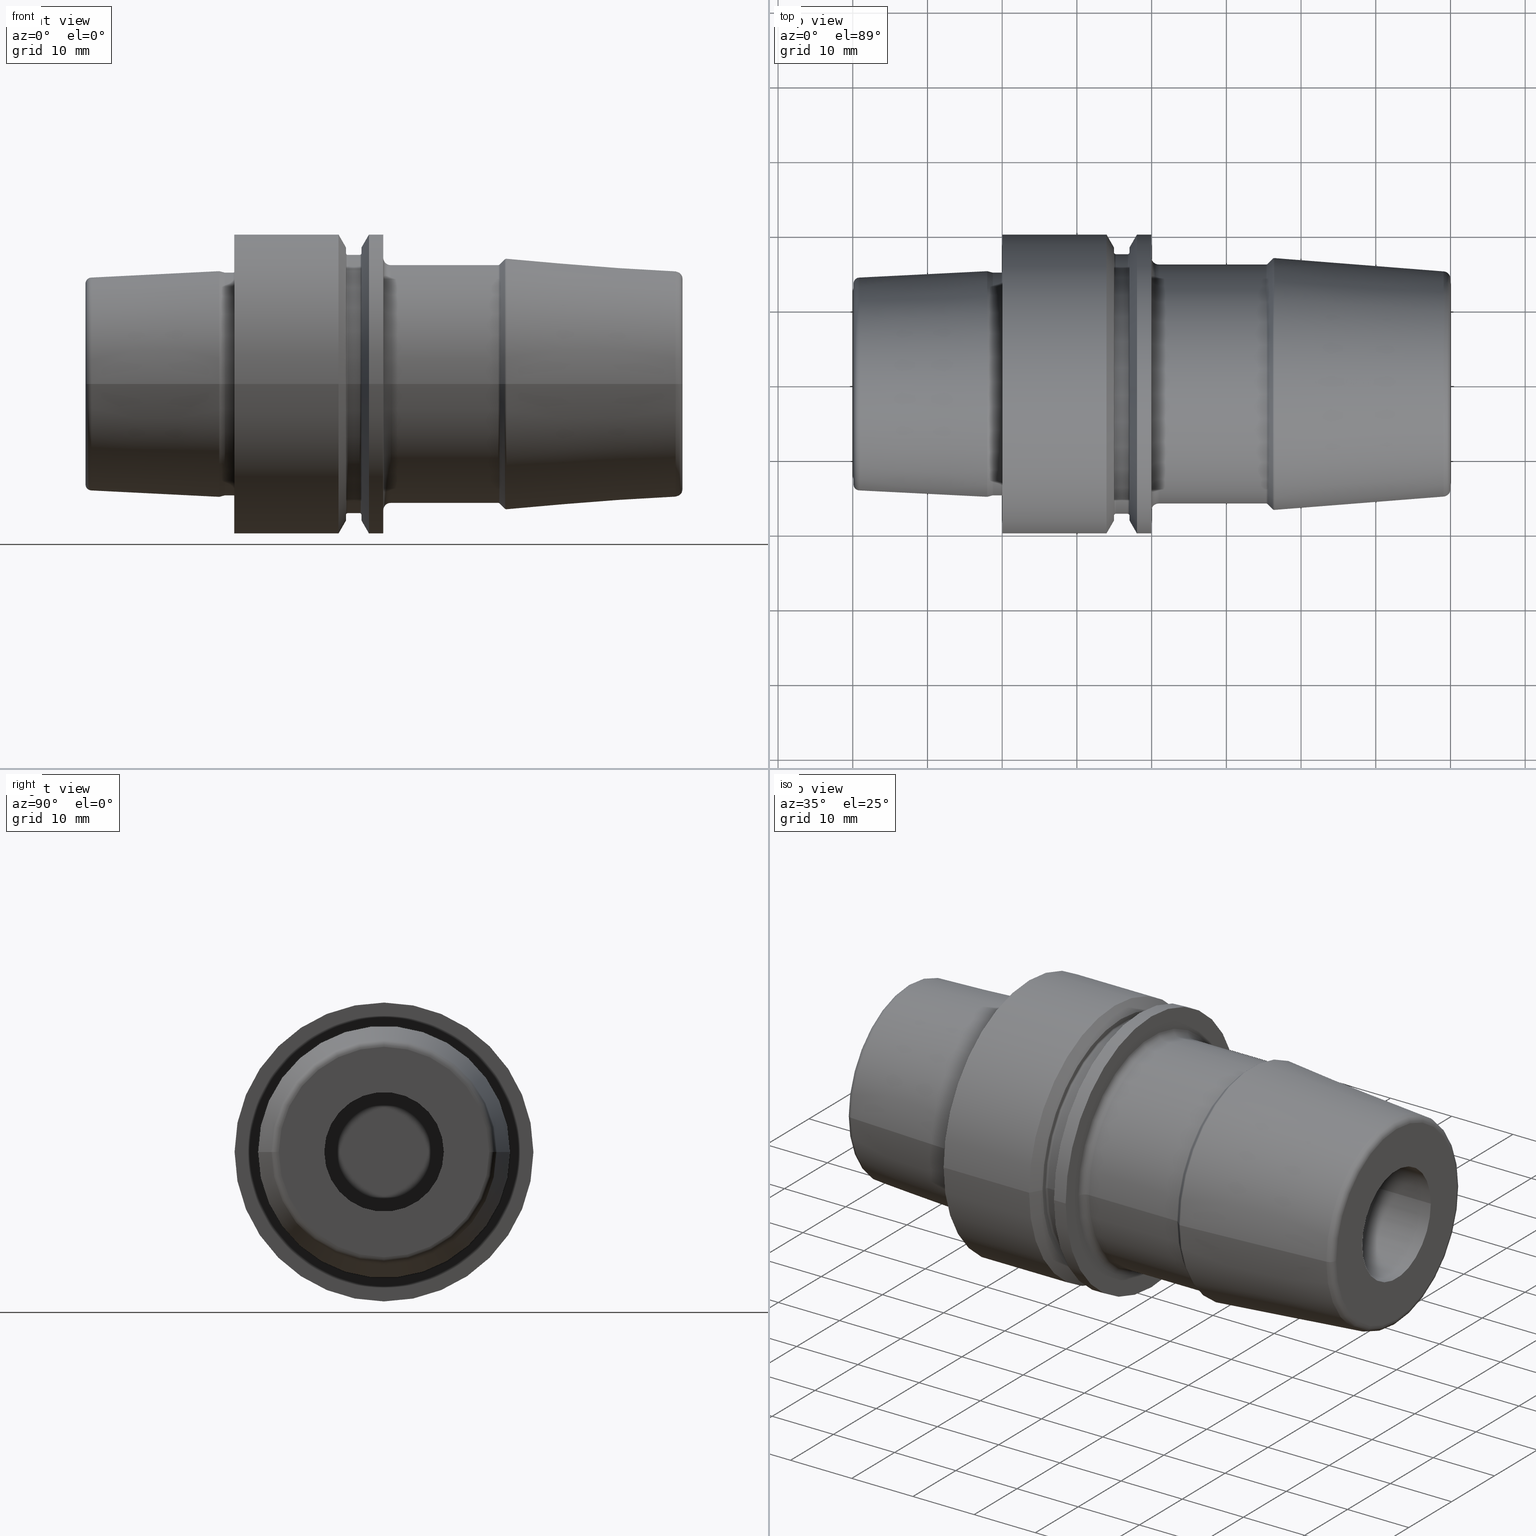
[diagram: canonical four-view strip — front | top / right | iso, engineering-drawing reading convention]
A machine part, canonical four-view strip (front | top / right | iso — engineering-drawing reading convention). The complete STEP part file that produces these views, byte-faithful:
ISO-10303-21;
HEADER;
FILE_DESCRIPTION((''),'2;1');
FILE_NAME('E40-145-16','2013-01-11T',('mei'),(''),
'PRO/ENGINEER BY PARAMETRIC TECHNOLOGY CORPORATION, 2010430',
'PRO/ENGINEER BY PARAMETRIC TECHNOLOGY CORPORATION, 2010430','');
FILE_SCHEMA(('CONFIG_CONTROL_DESIGN'));
ENDSEC;
DATA;
#2=CARTESIAN_POINT('',(-2.E0,0.E0,0.E0));
#3=DIRECTION('',(1.E0,0.E0,0.E0));
#4=DIRECTION('',(0.E0,1.E0,0.E0));
#5=AXIS2_PLACEMENT_3D('',#2,#3,#4);
#7=CARTESIAN_POINT('',(-1.304456457492E0,0.E0,0.E0));
#8=DIRECTION('',(-1.E0,0.E0,0.E0));
#9=DIRECTION('',(0.E0,-1.E0,0.E0));
#10=AXIS2_PLACEMENT_3D('',#7,#8,#9);
#12=DIRECTION('',(-9.659258262891E-1,-2.588190451025E-1,0.E0));
#13=VECTOR('',#12,7.200796619963E-1);
#14=CARTESIAN_POINT('',(-1.304456457492E0,-1.491732966948E1,0.E0));
#15=LINE('',#14,#13);
#16=CARTESIAN_POINT('',(-1.304456457492E0,0.E0,0.E0));
#17=DIRECTION('',(-1.E0,0.E0,0.E0));
#18=DIRECTION('',(0.E0,1.E0,0.E0));
#19=AXIS2_PLACEMENT_3D('',#16,#17,#18);
#21=DIRECTION('',(-9.659258262891E-1,2.588190451025E-1,0.E0));
#22=VECTOR('',#21,7.200796619963E-1);
#23=CARTESIAN_POINT('',(-1.304456457492E0,1.491732966948E1,0.E0));
#24=LINE('',#23,#22);
#25=CARTESIAN_POINT('',(-2.E0,0.E0,0.E0));
#26=DIRECTION('',(1.E0,0.E0,0.E0));
#27=DIRECTION('',(0.E0,-1.E0,0.E0));
#28=AXIS2_PLACEMENT_3D('',#25,#26,#27);
#30=DIRECTION('',(-9.987473526255E-1,-5.003724236654E-2,0.E0));
#31=VECTOR('',#30,1.716152713580E1);
#32=CARTESIAN_POINT('',(-2.E0,1.51037E1,0.E0));
#33=LINE('',#32,#31);
#34=DIRECTION('',(-9.987473526255E-1,5.003724236654E-2,0.E0));
#35=VECTOR('',#34,1.716152713580E1);
#36=CARTESIAN_POINT('',(-2.E0,-1.51037E1,0.E0));
#37=LINE('',#36,#35);
#38=CARTESIAN_POINT('',(-1.91E1,1.344598662523E1,0.E0));
#39=DIRECTION('',(0.E0,0.E0,1.E0));
#40=DIRECTION('',(-5.003724236654E-2,9.987473526255E-1,0.E0));
#41=AXIS2_PLACEMENT_3D('',#38,#39,#40);
#43=CARTESIAN_POINT('',(-1.91E1,-1.344598662523E1,0.E0));
#44=DIRECTION('',(0.E0,0.E0,-1.E0));
#45=DIRECTION('',(-5.003724236654E-2,-9.987473526255E-1,0.E0));
#46=AXIS2_PLACEMENT_3D('',#43,#44,#45);
#48=CARTESIAN_POINT('',(-1.914002979389E1,0.E0,0.E0));
#49=DIRECTION('',(-1.E0,0.E0,0.E0));
#50=DIRECTION('',(0.E0,1.E0,0.E0));
#51=AXIS2_PLACEMENT_3D('',#48,#49,#50);
#53=CARTESIAN_POINT('',(-1.914002979389E1,0.E0,0.E0));
#54=DIRECTION('',(1.E0,0.E0,0.E0));
#55=DIRECTION('',(0.E0,1.E0,0.E0));
#56=AXIS2_PLACEMENT_3D('',#53,#54,#55);
#58=CARTESIAN_POINT('',(-1.99E1,0.E0,0.E0));
#59=DIRECTION('',(-1.E0,0.E0,0.E0));
#60=DIRECTION('',(0.E0,1.E0,0.E0));
#61=AXIS2_PLACEMENT_3D('',#58,#59,#60);
#63=CARTESIAN_POINT('',(-1.99E1,0.E0,0.E0));
#64=DIRECTION('',(1.E0,0.E0,0.E0));
#65=DIRECTION('',(0.E0,1.E0,0.E0));
#66=AXIS2_PLACEMENT_3D('',#63,#64,#65);
#68=CARTESIAN_POINT('',(-1.99E1,0.E0,0.E0));
#69=DIRECTION('',(1.E0,0.E0,0.E0));
#70=DIRECTION('',(0.E0,1.E0,0.E0));
#71=AXIS2_PLACEMENT_3D('',#68,#69,#70);
#73=CARTESIAN_POINT('',(-1.99E1,0.E0,0.E0));
#74=DIRECTION('',(1.E0,0.E0,0.E0));
#75=DIRECTION('',(0.E0,-1.E0,0.E0));
#76=AXIS2_PLACEMENT_3D('',#73,#74,#75);
#78=CARTESIAN_POINT('',(-1.895E1,0.E0,0.E0));
#79=DIRECTION('',(1.E0,0.E0,0.E0));
#80=DIRECTION('',(0.E0,1.E0,0.E0));
#81=AXIS2_PLACEMENT_3D('',#78,#79,#80);
#83=DIRECTION('',(-8.660254037844E-1,5.E-1,0.E0));
#84=VECTOR('',#83,1.096965511460E0);
#85=CARTESIAN_POINT('',(-1.895E1,1.0521E1,0.E0));
#86=LINE('',#85,#84);
#87=CARTESIAN_POINT('',(-1.895E1,0.E0,0.E0));
#88=DIRECTION('',(-1.E0,0.E0,0.E0));
#89=DIRECTION('',(0.E0,1.E0,0.E0));
#90=AXIS2_PLACEMENT_3D('',#87,#88,#89);
#92=DIRECTION('',(-8.660254037844E-1,-5.E-1,0.E0));
#93=VECTOR('',#92,1.096965511460E0);
#94=CARTESIAN_POINT('',(-1.895E1,-1.0521E1,0.E0));
#95=LINE('',#94,#93);
#96=DIRECTION('',(-1.E0,0.E0,0.E0));
#97=VECTOR('',#96,6.964774086463E0);
#98=CARTESIAN_POINT('',(-1.198522591354E1,1.0521E1,0.E0));
#99=LINE('',#98,#97);
#100=CARTESIAN_POINT('',(-1.198522591354E1,0.E0,0.E0));
#101=DIRECTION('',(-1.E0,0.E0,0.E0));
#102=DIRECTION('',(0.E0,1.E0,0.E0));
#103=AXIS2_PLACEMENT_3D('',#100,#101,#102);
#105=DIRECTION('',(-1.E0,0.E0,0.E0));
#106=VECTOR('',#105,6.964774086463E0);
#107=CARTESIAN_POINT('',(-1.198522591354E1,-1.0521E1,0.E0));
#108=LINE('',#107,#106);
#109=CARTESIAN_POINT('',(-1.198522591354E1,0.E0,0.E0));
#110=DIRECTION('',(1.E0,0.E0,0.E0));
#111=DIRECTION('',(0.E0,1.E0,0.E0));
#112=AXIS2_PLACEMENT_3D('',#109,#110,#111);
#114=CARTESIAN_POINT('',(-1.079501833360E1,0.E0,0.E0));
#115=DIRECTION('',(1.E0,0.E0,0.E0));
#116=DIRECTION('',(0.E0,1.E0,0.E0));
#117=AXIS2_PLACEMENT_3D('',#114,#115,#116);
#119=DIRECTION('',(-5.E-1,-8.660254037844E-1,0.E0));
#120=VECTOR('',#119,2.380415159869E0);
#121=CARTESIAN_POINT('',(-1.079501833360E1,1.25825E1,0.E0));
#122=LINE('',#121,#120);
#123=CARTESIAN_POINT('',(-1.079501833360E1,0.E0,0.E0));
#124=DIRECTION('',(-1.E0,0.E0,0.E0));
#125=DIRECTION('',(0.E0,1.E0,0.E0));
#126=AXIS2_PLACEMENT_3D('',#123,#124,#125);
#128=DIRECTION('',(-5.E-1,8.660254037844E-1,0.E0));
#129=VECTOR('',#128,2.380415159869E0);
#130=CARTESIAN_POINT('',(-1.079501833360E1,-1.25825E1,0.E0));
#131=LINE('',#130,#129);
#132=CARTESIAN_POINT('',(-1.044860817209E1,1.23825E1,0.E0));
#133=DIRECTION('',(0.E0,0.E0,1.E0));
#134=DIRECTION('',(0.E0,1.E0,0.E0));
#135=AXIS2_PLACEMENT_3D('',#132,#133,#134);
#137=CARTESIAN_POINT('',(-1.044860817209E1,0.E0,0.E0));
#138=DIRECTION('',(-1.E0,0.E0,0.E0));
#139=DIRECTION('',(0.E0,1.E0,0.E0));
#140=AXIS2_PLACEMENT_3D('',#137,#138,#139);
#142=CARTESIAN_POINT('',(-1.044860817209E1,-1.23825E1,0.E0));
#143=DIRECTION('',(0.E0,0.E0,-1.E0));
#144=DIRECTION('',(0.E0,-1.E0,0.E0));
#145=AXIS2_PLACEMENT_3D('',#142,#143,#144);
#147=CARTESIAN_POINT('',(-1.044860817209E1,0.E0,0.E0));
#148=DIRECTION('',(1.E0,0.E0,0.E0));
#149=DIRECTION('',(0.E0,1.E0,0.E0));
#150=AXIS2_PLACEMENT_3D('',#147,#148,#149);
#152=CARTESIAN_POINT('',(-4.183373967266E0,0.E0,0.E0));
#153=DIRECTION('',(1.E0,0.E0,0.E0));
#154=DIRECTION('',(0.E0,1.E0,0.E0));
#155=AXIS2_PLACEMENT_3D('',#152,#153,#154);
#157=DIRECTION('',(-1.E0,0.E0,0.E0));
#158=VECTOR('',#157,6.265234204822E0);
#159=CARTESIAN_POINT('',(-4.183373967266E0,1.27825E1,0.E0));
#160=LINE('',#159,#158);
#161=CARTESIAN_POINT('',(-4.183373967266E0,0.E0,0.E0));
#162=DIRECTION('',(-1.E0,0.E0,0.E0));
#163=DIRECTION('',(0.E0,1.E0,0.E0));
#164=AXIS2_PLACEMENT_3D('',#161,#162,#163);
#166=DIRECTION('',(-1.E0,0.E0,0.E0));
#167=VECTOR('',#166,6.265234204822E0);
#168=CARTESIAN_POINT('',(-4.183373967266E0,-1.27825E1,0.E0));
#169=LINE('',#168,#167);
#170=CARTESIAN_POINT('',(-4.183373967266E0,7.7825E0,0.E0));
#171=DIRECTION('',(0.E0,0.E0,1.E0));
#172=DIRECTION('',(8.366747934532E-1,5.477E-1,0.E0));
#173=AXIS2_PLACEMENT_3D('',#170,#171,#172);
#175=CARTESIAN_POINT('',(0.E0,0.E0,0.E0));
#176=DIRECTION('',(-1.E0,0.E0,0.E0));
#177=DIRECTION('',(0.E0,1.E0,0.E0));
#178=AXIS2_PLACEMENT_3D('',#175,#176,#177);
#180=CARTESIAN_POINT('',(-4.183373967266E0,-7.7825E0,0.E0));
#181=DIRECTION('',(0.E0,0.E0,-1.E0));
#182=DIRECTION('',(8.366747934532E-1,-5.477E-1,0.E0));
#183=AXIS2_PLACEMENT_3D('',#180,#181,#182);
#185=CARTESIAN_POINT('',(0.E0,0.E0,0.E0));
#186=DIRECTION('',(1.E0,0.E0,0.E0));
#187=DIRECTION('',(0.E0,1.E0,0.E0));
#188=AXIS2_PLACEMENT_3D('',#185,#186,#187);
#190=CARTESIAN_POINT('',(6.186662590986E0,0.E0,0.E0));
#191=DIRECTION('',(1.E0,0.E0,0.E0));
#192=DIRECTION('',(0.E0,1.E0,0.E0));
#193=AXIS2_PLACEMENT_3D('',#190,#191,#192);
#195=DIRECTION('',(-1.E0,0.E0,0.E0));
#196=VECTOR('',#195,6.186662590986E0);
#197=CARTESIAN_POINT('',(6.186662590986E0,1.0521E1,0.E0));
#198=LINE('',#197,#196);
#199=CARTESIAN_POINT('',(6.186662590986E0,0.E0,0.E0));
#200=DIRECTION('',(-1.E0,0.E0,0.E0));
#201=DIRECTION('',(0.E0,1.E0,0.E0));
#202=AXIS2_PLACEMENT_3D('',#199,#200,#201);
#204=DIRECTION('',(-1.E0,0.E0,0.E0));
#205=VECTOR('',#204,6.186662590986E0);
#206=CARTESIAN_POINT('',(6.186662590986E0,-1.0521E1,0.E0));
#207=LINE('',#206,#205);
#208=CARTESIAN_POINT('',(6.95E0,9.875E0,0.E0));
#209=DIRECTION('',(0.E0,0.E0,1.E0));
#210=DIRECTION('',(1.E0,0.E0,0.E0));
#211=AXIS2_PLACEMENT_3D('',#208,#209,#210);
#213=CARTESIAN_POINT('',(7.95E0,0.E0,0.E0));
#214=DIRECTION('',(-1.E0,0.E0,0.E0));
#215=DIRECTION('',(0.E0,1.E0,0.E0));
#216=AXIS2_PLACEMENT_3D('',#213,#214,#215);
#218=CARTESIAN_POINT('',(6.95E0,-9.875E0,0.E0));
#219=DIRECTION('',(0.E0,0.E0,-1.E0));
#220=DIRECTION('',(1.E0,0.E0,0.E0));
#221=AXIS2_PLACEMENT_3D('',#218,#219,#220);
#223=CARTESIAN_POINT('',(7.95E0,0.E0,0.E0));
#224=DIRECTION('',(1.E0,0.E0,0.E0));
#225=DIRECTION('',(0.E0,1.E0,0.E0));
#226=AXIS2_PLACEMENT_3D('',#223,#224,#225);
#228=CARTESIAN_POINT('',(-1.200928839451E0,1.53037E1,0.E0));
#229=DIRECTION('',(0.E0,0.E0,-1.E0));
#230=DIRECTION('',(0.E0,-1.E0,0.E0));
#231=AXIS2_PLACEMENT_3D('',#228,#229,#230);
#233=CARTESIAN_POINT('',(-1.200928839451E0,-1.53037E1,0.E0));
#234=DIRECTION('',(0.E0,0.E0,1.E0));
#235=DIRECTION('',(0.E0,1.E0,0.E0));
#236=AXIS2_PLACEMENT_3D('',#233,#234,#235);
#238=CARTESIAN_POINT('',(-1.200928839451E0,0.E0,0.E0));
#239=DIRECTION('',(-1.E0,0.E0,0.E0));
#240=DIRECTION('',(0.E0,1.E0,0.E0));
#241=AXIS2_PLACEMENT_3D('',#238,#239,#240);
#243=CARTESIAN_POINT('',(-1.200928839451E0,0.E0,0.E0));
#244=DIRECTION('',(-1.E0,0.E0,0.E0));
#245=DIRECTION('',(0.E0,-1.E0,0.E0));
#246=AXIS2_PLACEMENT_3D('',#243,#244,#245);
#248=CARTESIAN_POINT('',(-1.541771632753E-1,0.E0,0.E0));
#249=DIRECTION('',(-1.E0,0.E0,0.E0));
#250=DIRECTION('',(0.E0,-1.E0,0.E0));
#251=AXIS2_PLACEMENT_3D('',#248,#249,#250);
#253=DIRECTION('',(-1.E0,0.E0,0.E0));
#254=VECTOR('',#253,1.046751676176E0);
#255=CARTESIAN_POINT('',(-1.541771632753E-1,1.49037E1,0.E0));
#256=LINE('',#255,#254);
#257=DIRECTION('',(-1.E0,0.E0,0.E0));
#258=VECTOR('',#257,1.046751676176E0);
#259=CARTESIAN_POINT('',(-1.541771632753E-1,-1.49037E1,0.E0));
#260=LINE('',#259,#258);
#261=CARTESIAN_POINT('',(-1.541771632753E-1,0.E0,0.E0));
#262=DIRECTION('',(-1.E0,0.E0,0.E0));
#263=DIRECTION('',(0.E0,1.E0,0.E0));
#264=AXIS2_PLACEMENT_3D('',#261,#262,#263);
#266=CARTESIAN_POINT('',(-1.541771632753E-1,1.53037E1,0.E0));
#267=DIRECTION('',(0.E0,0.E0,-1.E0));
#268=DIRECTION('',(9.304175679820E-1,3.665012267243E-1,0.E0));
#269=AXIS2_PLACEMENT_3D('',#266,#267,#268);
#271=CARTESIAN_POINT('',(-1.541771632753E-1,-1.53037E1,0.E0));
#272=DIRECTION('',(0.E0,0.E0,1.E0));
#273=DIRECTION('',(9.304175679820E-1,-3.665012267243E-1,0.E0));
#274=AXIS2_PLACEMENT_3D('',#271,#272,#273);
#276=CARTESIAN_POINT('',(2.179898639175E-1,0.E0,0.E0));
#277=DIRECTION('',(-1.E0,0.E0,0.E0));
#278=DIRECTION('',(0.E0,1.E0,0.E0));
#279=AXIS2_PLACEMENT_3D('',#276,#277,#278);
#281=CARTESIAN_POINT('',(2.179898639175E-1,0.E0,0.E0));
#282=DIRECTION('',(-1.E0,0.E0,0.E0));
#283=DIRECTION('',(0.E0,-1.E0,0.E0));
#284=AXIS2_PLACEMENT_3D('',#281,#282,#283);
#286=DIRECTION('',(3.665012267243E-1,9.304175679820E-1,0.E0));
#287=VECTOR('',#286,5.947861781141E-1);
#288=CARTESIAN_POINT('',(0.E0,-1.60037E1,0.E0));
#289=LINE('',#288,#287);
#290=DIRECTION('',(3.665012267243E-1,-9.304175679820E-1,0.E0));
#291=VECTOR('',#290,5.947861781141E-1);
#292=CARTESIAN_POINT('',(0.E0,1.60037E1,0.E0));
#293=LINE('',#292,#291);
#294=CARTESIAN_POINT('',(-1.065814103640E-14,0.E0,0.E0));
#295=DIRECTION('',(1.E0,0.E0,0.E0));
#296=DIRECTION('',(0.E0,1.E0,0.E0));
#297=AXIS2_PLACEMENT_3D('',#294,#295,#296);
#299=CARTESIAN_POINT('',(-1.065814103640E-14,0.E0,0.E0));
#300=DIRECTION('',(-1.E0,0.E0,0.E0));
#301=DIRECTION('',(0.E0,1.E0,0.E0));
#302=AXIS2_PLACEMENT_3D('',#299,#300,#301);
#304=CARTESIAN_POINT('',(0.E0,0.E0,0.E0));
#305=DIRECTION('',(-1.E0,0.E0,0.E0));
#306=DIRECTION('',(0.E0,-1.E0,0.E0));
#307=AXIS2_PLACEMENT_3D('',#304,#305,#306);
#309=CARTESIAN_POINT('',(0.E0,0.E0,0.E0));
#310=DIRECTION('',(-1.E0,0.E0,0.E0));
#311=DIRECTION('',(0.E0,1.E0,0.E0));
#312=AXIS2_PLACEMENT_3D('',#309,#310,#311);
#314=CARTESIAN_POINT('',(1.803515969889E1,0.E0,0.E0));
#315=DIRECTION('',(1.E0,0.E0,0.E0));
#316=DIRECTION('',(0.E0,1.E0,0.E0));
#317=AXIS2_PLACEMENT_3D('',#314,#315,#316);
#319=CARTESIAN_POINT('',(1.995E1,0.E0,0.E0));
#320=DIRECTION('',(1.E0,0.E0,0.E0));
#321=DIRECTION('',(0.E0,1.E0,0.E0));
#322=AXIS2_PLACEMENT_3D('',#319,#320,#321);
#324=CARTESIAN_POINT('',(1.396484030111E1,0.E0,0.E0));
#325=DIRECTION('',(1.E0,0.E0,0.E0));
#326=DIRECTION('',(0.E0,1.E0,0.E0));
#327=AXIS2_PLACEMENT_3D('',#324,#325,#326);
#329=CARTESIAN_POINT('',(1.70375E1,0.E0,0.E0));
#330=DIRECTION('',(1.E0,0.E0,0.E0));
#331=DIRECTION('',(0.E0,1.E0,0.E0));
#332=AXIS2_PLACEMENT_3D('',#329,#330,#331);
#334=DIRECTION('',(5.E-1,8.660254037844E-1,0.E0));
#335=VECTOR('',#334,1.995319397787E0);
#336=CARTESIAN_POINT('',(1.70375E1,1.827200271285E1,0.E0));
#337=LINE('',#336,#335);
#338=CARTESIAN_POINT('',(1.70375E1,0.E0,0.E0));
#339=DIRECTION('',(-1.E0,0.E0,0.E0));
#340=DIRECTION('',(0.E0,1.E0,0.E0));
#341=AXIS2_PLACEMENT_3D('',#338,#339,#340);
#343=DIRECTION('',(5.E-1,-8.660254037844E-1,0.E0));
#344=VECTOR('',#343,1.995319397787E0);
#345=CARTESIAN_POINT('',(1.70375E1,-1.827200271285E1,0.E0));
#346=LINE('',#345,#344);
#347=CARTESIAN_POINT('',(1.70375E1,0.E0,0.E0));
#348=DIRECTION('',(-1.E0,0.E0,0.E0));
#349=DIRECTION('',(0.E0,1.E0,0.E0));
#350=AXIS2_PLACEMENT_3D('',#347,#348,#349);
#352=CARTESIAN_POINT('',(1.70375E1,0.E0,0.E0));
#353=DIRECTION('',(1.E0,0.E0,0.E0));
#354=DIRECTION('',(0.E0,1.E0,0.E0));
#355=AXIS2_PLACEMENT_3D('',#352,#353,#354);
#357=CARTESIAN_POINT('',(1.67875E1,1.7625E1,0.E0));
#358=DIRECTION('',(0.E0,0.E0,1.E0));
#359=DIRECTION('',(0.E0,-1.E0,0.E0));
#360=AXIS2_PLACEMENT_3D('',#357,#358,#359);
#362=CARTESIAN_POINT('',(1.67875E1,0.E0,0.E0));
#363=DIRECTION('',(-1.E0,0.E0,0.E0));
#364=DIRECTION('',(0.E0,1.E0,0.E0));
#365=AXIS2_PLACEMENT_3D('',#362,#363,#364);
#367=CARTESIAN_POINT('',(1.67875E1,-1.7625E1,0.E0));
#368=DIRECTION('',(0.E0,0.E0,-1.E0));
#369=DIRECTION('',(0.E0,1.E0,0.E0));
#370=AXIS2_PLACEMENT_3D('',#367,#368,#369);
#372=CARTESIAN_POINT('',(1.67875E1,0.E0,0.E0));
#373=DIRECTION('',(1.E0,0.E0,0.E0));
#374=DIRECTION('',(0.E0,1.E0,0.E0));
#375=AXIS2_PLACEMENT_3D('',#372,#373,#374);
#377=CARTESIAN_POINT('',(1.52125E1,0.E0,0.E0));
#378=DIRECTION('',(1.E0,0.E0,0.E0));
#379=DIRECTION('',(0.E0,1.E0,0.E0));
#380=AXIS2_PLACEMENT_3D('',#377,#378,#379);
#382=DIRECTION('',(1.E0,0.E0,0.E0));
#383=VECTOR('',#382,1.575E0);
#384=CARTESIAN_POINT('',(1.52125E1,-1.7375E1,0.E0));
#385=LINE('',#384,#383);
#386=DIRECTION('',(-1.E0,0.E0,0.E0));
#387=VECTOR('',#386,1.575E0);
#388=CARTESIAN_POINT('',(1.67875E1,1.7375E1,0.E0));
#389=LINE('',#388,#387);
#390=CARTESIAN_POINT('',(1.52125E1,0.E0,0.E0));
#391=DIRECTION('',(-1.E0,0.E0,0.E0));
#392=DIRECTION('',(0.E0,1.E0,0.E0));
#393=AXIS2_PLACEMENT_3D('',#390,#391,#392);
#395=CARTESIAN_POINT('',(1.52125E1,1.7625E1,0.E0));
#396=DIRECTION('',(0.E0,0.E0,1.E0));
#397=DIRECTION('',(-1.E0,0.E0,0.E0));
#398=AXIS2_PLACEMENT_3D('',#395,#396,#397);
#400=CARTESIAN_POINT('',(1.49625E1,0.E0,0.E0));
#401=DIRECTION('',(-1.E0,0.E0,0.E0));
#402=DIRECTION('',(0.E0,1.E0,0.E0));
#403=AXIS2_PLACEMENT_3D('',#400,#401,#402);
#405=CARTESIAN_POINT('',(1.52125E1,-1.7625E1,0.E0));
#406=DIRECTION('',(0.E0,0.E0,-1.E0));
#407=DIRECTION('',(-1.E0,0.E0,0.E0));
#408=AXIS2_PLACEMENT_3D('',#405,#406,#407);
#410=CARTESIAN_POINT('',(1.49625E1,0.E0,0.E0));
#411=DIRECTION('',(1.E0,0.E0,0.E0));
#412=DIRECTION('',(0.E0,1.E0,0.E0));
#413=AXIS2_PLACEMENT_3D('',#410,#411,#412);
#415=CARTESIAN_POINT('',(1.49625E1,0.E0,0.E0));
#416=DIRECTION('',(-1.E0,0.E0,0.E0));
#417=DIRECTION('',(0.E0,1.E0,0.E0));
#418=AXIS2_PLACEMENT_3D('',#415,#416,#417);
#420=CARTESIAN_POINT('',(1.49625E1,0.E0,0.E0));
#421=DIRECTION('',(1.E0,0.E0,0.E0));
#422=DIRECTION('',(0.E0,1.E0,0.E0));
#423=AXIS2_PLACEMENT_3D('',#420,#421,#422);
#425=DIRECTION('',(5.E-1,-8.660254037844E-1,0.E0));
#426=VECTOR('',#425,1.995319397787E0);
#427=CARTESIAN_POINT('',(1.396484030111E1,2.E1,0.E0));
#428=LINE('',#427,#426);
#429=DIRECTION('',(5.E-1,8.660254037844E-1,0.E0));
#430=VECTOR('',#429,1.995319397787E0);
#431=CARTESIAN_POINT('',(1.396484030111E1,-2.E1,0.E0));
#432=LINE('',#431,#430);
#433=CARTESIAN_POINT('',(1.803515969889E1,0.E0,0.E0));
#434=DIRECTION('',(1.E0,0.E0,0.E0));
#435=DIRECTION('',(0.E0,-1.E0,0.E0));
#436=AXIS2_PLACEMENT_3D('',#433,#434,#435);
#438=DIRECTION('',(-1.E0,0.E0,0.E0));
#439=VECTOR('',#438,1.914840301107E0);
#440=CARTESIAN_POINT('',(1.995E1,-2.E1,0.E0));
#441=LINE('',#440,#439);
#442=CARTESIAN_POINT('',(1.995E1,0.E0,0.E0));
#443=DIRECTION('',(-1.E0,0.E0,0.E0));
#444=DIRECTION('',(0.E0,1.E0,0.E0));
#445=AXIS2_PLACEMENT_3D('',#442,#443,#444);
#447=DIRECTION('',(-1.E0,0.E0,0.E0));
#448=VECTOR('',#447,1.914840301107E0);
#449=CARTESIAN_POINT('',(1.995E1,2.E1,0.E0));
#450=LINE('',#449,#448);
#451=CARTESIAN_POINT('',(1.396484030111E1,0.E0,0.E0));
#452=DIRECTION('',(1.E0,0.E0,0.E0));
#453=DIRECTION('',(0.E0,-1.E0,0.E0));
#454=AXIS2_PLACEMENT_3D('',#451,#452,#453);
#456=DIRECTION('',(-1.E0,0.E0,0.E0));
#457=VECTOR('',#456,1.396484030111E1);
#458=CARTESIAN_POINT('',(1.396484030111E1,2.E1,0.E0));
#459=LINE('',#458,#457);
#460=DIRECTION('',(-1.E0,0.E0,0.E0));
#461=VECTOR('',#460,1.396484030111E1);
#462=CARTESIAN_POINT('',(1.396484030111E1,-2.E1,0.E0));
#463=LINE('',#462,#461);
#464=CARTESIAN_POINT('',(1.995E1,0.E0,0.E0));
#465=DIRECTION('',(1.E0,0.E0,0.E0));
#466=DIRECTION('',(0.E0,-1.E0,0.E0));
#467=AXIS2_PLACEMENT_3D('',#464,#465,#466);
#469=CARTESIAN_POINT('',(1.995E1,0.E0,0.E0));
#470=DIRECTION('',(1.E0,0.E0,0.E0));
#471=DIRECTION('',(0.E0,1.E0,0.E0));
#472=AXIS2_PLACEMENT_3D('',#469,#470,#471);
#474=CARTESIAN_POINT('',(2.095E1,-1.7E1,0.E0));
#475=DIRECTION('',(0.E0,0.E0,-1.E0));
#476=DIRECTION('',(-1.E0,0.E0,0.E0));
#477=AXIS2_PLACEMENT_3D('',#474,#475,#476);
#479=CARTESIAN_POINT('',(2.095E1,1.7E1,-1.015854067532E-14));
#480=DIRECTION('',(0.E0,0.E0,1.E0));
#481=DIRECTION('',(-1.E0,0.E0,0.E0));
#482=AXIS2_PLACEMENT_3D('',#479,#480,#481);
#484=CARTESIAN_POINT('',(2.095E1,0.E0,0.E0));
#485=DIRECTION('',(1.E0,0.E0,0.E0));
#486=DIRECTION('',(0.E0,1.E0,0.E0));
#487=AXIS2_PLACEMENT_3D('',#484,#485,#486);
#489=CARTESIAN_POINT('',(3.532573593129E1,0.E0,0.E0));
#490=DIRECTION('',(1.E0,0.E0,0.E0));
#491=DIRECTION('',(0.E0,1.E0,0.E0));
#492=AXIS2_PLACEMENT_3D('',#489,#490,#491);
#494=CARTESIAN_POINT('',(2.095E1,0.E0,0.E0));
#495=DIRECTION('',(1.E0,0.E0,0.E0));
#496=DIRECTION('',(0.E0,-1.E0,0.E0));
#497=AXIS2_PLACEMENT_3D('',#494,#495,#496);
#499=DIRECTION('',(-1.E0,0.E0,-3.172854969370E-14));
#500=VECTOR('',#499,1.437573593129E1);
#501=CARTESIAN_POINT('',(3.532573593129E1,-1.6E1,8.964850914018E-14));
#502=LINE('',#501,#500);
#503=CARTESIAN_POINT('',(3.532573593129E1,0.E0,0.E0));
#504=DIRECTION('',(1.E0,0.E0,0.E0));
#505=DIRECTION('',(0.E0,-1.E0,0.E0));
#506=AXIS2_PLACEMENT_3D('',#503,#504,#505);
#508=DIRECTION('',(-1.E0,0.E0,3.171889607467E-14));
#509=VECTOR('',#508,1.437573593129E1);
#510=CARTESIAN_POINT('',(3.532573593129E1,1.6E1,-9.190084691143E-14));
#511=LINE('',#510,#509);
#512=CARTESIAN_POINT('',(3.532573593129E1,-1.63E1,1.770064650408E-11));
#513=DIRECTION('',(0.E0,-1.085929957068E-12,-1.E0));
#514=DIRECTION('',(0.E0,1.E0,-1.085929957068E-12));
#515=AXIS2_PLACEMENT_3D('',#512,#513,#514);
#517=CARTESIAN_POINT('',(3.532573593129E1,1.63E1,-1.770258939437E-11));
#518=DIRECTION('',(0.E0,1.086048785626E-12,1.E0));
#519=DIRECTION('',(0.E0,-1.E0,1.086048785626E-12));
#520=AXIS2_PLACEMENT_3D('',#517,#518,#519);
#522=CARTESIAN_POINT('',(3.621632503587E1,0.E0,0.E0));
#523=DIRECTION('',(-1.E0,0.E0,0.E0));
#524=DIRECTION('',(0.E0,-1.E0,0.E0));
#525=AXIS2_PLACEMENT_3D('',#522,#523,#524);
#527=CARTESIAN_POINT('',(3.553786796564E1,0.E0,0.E0));
#528=DIRECTION('',(1.E0,0.E0,0.E0));
#529=DIRECTION('',(0.E0,1.E0,0.E0));
#530=AXIS2_PLACEMENT_3D('',#527,#528,#529);
#532=CARTESIAN_POINT('',(3.642845707023E1,-1.655419300152E1,
-8.466533030216E-12));
#533=DIRECTION('',(0.E0,-5.114433182518E-13,1.E0));
#534=DIRECTION('',(-7.071067811906E-1,-7.071067811825E-1,-3.616450385263E-13));
#535=AXIS2_PLACEMENT_3D('',#532,#533,#534);
#537=CARTESIAN_POINT('',(3.642845707023E1,1.655419300152E1,8.456318978389E-12));
#538=DIRECTION('',(0.E0,5.108266240561E-13,-1.E0));
#539=DIRECTION('',(-7.071067811906E-1,7.071067811825E-1,3.612089698786E-13));
#540=AXIS2_PLACEMENT_3D('',#537,#538,#539);
#542=CARTESIAN_POINT('',(5.907845909573E1,0.E0,0.E0));
#543=DIRECTION('',(-1.E0,0.E0,0.E0));
#544=DIRECTION('',(0.E0,1.E0,0.E0));
#545=AXIS2_PLACEMENT_3D('',#542,#543,#544);
#547=DIRECTION('',(-9.969173337331E-1,7.845909572785E-2,3.844125829266E-13));
#548=VECTOR('',#547,2.269642981535E1);
#549=CARTESIAN_POINT('',(5.907845909573E1,1.507252684207E1,
-6.649541496130E-13));
#550=LINE('',#549,#548);
#551=CARTESIAN_POINT('',(3.645199479895E1,0.E0,0.E0));
#552=DIRECTION('',(-1.E0,0.E0,0.E0));
#553=DIRECTION('',(0.E0,1.E0,0.E0));
#554=AXIS2_PLACEMENT_3D('',#551,#552,#553);
#556=DIRECTION('',(-9.969173337331E-1,-7.845909572785E-2,-3.844076476141E-13));
#557=VECTOR('',#556,2.269642981535E1);
#558=CARTESIAN_POINT('',(5.907845909573E1,-1.507252684207E1,
6.644926865692E-13));
#559=LINE('',#558,#557);
#560=CARTESIAN_POINT('',(5.9E1,1.407560950834E1,1.595380771935E-11));
#561=DIRECTION('',(0.E0,1.133437961542E-12,-1.E0));
#562=DIRECTION('',(7.845909572793E-2,9.969173337331E-1,1.129943950573E-12));
#563=AXIS2_PLACEMENT_3D('',#560,#561,#562);
#565=CARTESIAN_POINT('',(5.9E1,-1.407560950834E1,-1.594914478265E-11));
#566=DIRECTION('',(0.E0,-1.133106629359E-12,1.E0));
#567=DIRECTION('',(7.845909572793E-2,-9.969173337331E-1,-1.129613639775E-12));
#568=AXIS2_PLACEMENT_3D('',#565,#566,#567);
#570=CARTESIAN_POINT('',(5.907845909573E1,0.E0,0.E0));
#571=DIRECTION('',(-1.E0,0.E0,0.E0));
#572=DIRECTION('',(0.E0,-1.E0,0.E0));
#573=AXIS2_PLACEMENT_3D('',#570,#571,#572);
#575=CARTESIAN_POINT('',(3.645199479895E1,0.E0,0.E0));
#576=DIRECTION('',(-1.E0,0.E0,0.E0));
#577=DIRECTION('',(0.E0,-1.E0,0.E0));
#578=AXIS2_PLACEMENT_3D('',#575,#576,#577);
#580=CARTESIAN_POINT('',(6.E1,0.E0,0.E0));
#581=DIRECTION('',(-1.E0,0.E0,0.E0));
#582=DIRECTION('',(0.E0,1.E0,0.E0));
#583=AXIS2_PLACEMENT_3D('',#580,#581,#582);
#585=CARTESIAN_POINT('',(6.E1,0.E0,0.E0));
#586=DIRECTION('',(-1.E0,0.E0,0.E0));
#587=DIRECTION('',(0.E0,-1.E0,0.E0));
#588=AXIS2_PLACEMENT_3D('',#585,#586,#587);
#590=CARTESIAN_POINT('',(6.E1,0.E0,0.E0));
#591=DIRECTION('',(-1.E0,0.E0,0.E0));
#592=DIRECTION('',(0.E0,-1.E0,0.E0));
#593=AXIS2_PLACEMENT_3D('',#590,#591,#592);
#595=CARTESIAN_POINT('',(6.E1,0.E0,0.E0));
#596=DIRECTION('',(-1.E0,0.E0,0.E0));
#597=DIRECTION('',(0.E0,1.E0,0.E0));
#598=AXIS2_PLACEMENT_3D('',#595,#596,#597);
#600=DIRECTION('',(-1.E0,0.E0,0.E0));
#601=VECTOR('',#600,4.7E1);
#602=CARTESIAN_POINT('',(6.E1,-8.E0,0.E0));
#603=LINE('',#602,#601);
#604=DIRECTION('',(-1.E0,0.E0,0.E0));
#605=VECTOR('',#604,4.7E1);
#606=CARTESIAN_POINT('',(6.E1,8.E0,0.E0));
#607=LINE('',#606,#605);
#608=CARTESIAN_POINT('',(1.3E1,0.E0,0.E0));
#609=DIRECTION('',(-1.E0,0.E0,0.E0));
#610=DIRECTION('',(0.E0,-1.E0,0.E0));
#611=AXIS2_PLACEMENT_3D('',#608,#609,#610);
#613=CARTESIAN_POINT('',(1.3E1,0.E0,0.E0));
#614=DIRECTION('',(-1.E0,0.E0,0.E0));
#615=DIRECTION('',(0.E0,1.E0,0.E0));
#616=AXIS2_PLACEMENT_3D('',#613,#614,#615);
#618=CARTESIAN_POINT('',(3.621632503587E1,0.E0,0.E0));
#619=DIRECTION('',(-1.E0,0.E0,0.E0));
#620=DIRECTION('',(0.E0,1.E0,0.E0));
#621=AXIS2_PLACEMENT_3D('',#618,#619,#620);
#623=DIRECTION('',(-7.071067811865E-1,-7.071067811865E-1,1.884997687309E-13));
#624=VECTOR('',#623,9.594831902050E-1);
#625=CARTESIAN_POINT('',(3.621632503587E1,1.676632503587E1,
-2.293689224240E-13));
#626=LINE('',#625,#624);
#627=CARTESIAN_POINT('',(3.553786796564E1,0.E0,0.E0));
#628=DIRECTION('',(1.E0,0.E0,0.E0));
#629=DIRECTION('',(0.E0,-1.E0,0.E0));
#630=AXIS2_PLACEMENT_3D('',#627,#628,#629);
#632=DIRECTION('',(-7.071067811865E-1,7.071067811865E-1,-1.902668604017E-13));
#633=VECTOR('',#632,9.594831902050E-1);
#634=CARTESIAN_POINT('',(3.621632503587E1,-1.676632503587E1,
2.251005504342E-13));
#635=LINE('',#634,#633);
#636=CARTESIAN_POINT('',(2.179898639175E-1,-1.545030049069E1,0.E0));
#637=CARTESIAN_POINT('',(-1.541771632753E-1,-1.49037E1,0.E0));
#638=VERTEX_POINT('',#636);
#639=VERTEX_POINT('',#637);
#640=CARTESIAN_POINT('',(-1.200928839451E0,-1.49037E1,0.E0));
#641=VERTEX_POINT('',#640);
#642=CARTESIAN_POINT('',(-1.304456457492E0,-1.491732966948E1,0.E0));
#643=VERTEX_POINT('',#642);
#644=CARTESIAN_POINT('',(2.179898639175E-1,1.545030049069E1,0.E0));
#645=CARTESIAN_POINT('',(-1.541771632753E-1,1.49037E1,0.E0));
#646=VERTEX_POINT('',#644);
#647=VERTEX_POINT('',#645);
#648=CARTESIAN_POINT('',(-1.200928839451E0,1.49037E1,0.E0));
#649=VERTEX_POINT('',#648);
#650=CARTESIAN_POINT('',(-1.304456457492E0,1.491732966948E1,0.E0));
#651=VERTEX_POINT('',#650);
#652=CARTESIAN_POINT('',(-2.E0,1.51037E1,0.E0));
#653=CARTESIAN_POINT('',(-2.E0,-1.51037E1,0.E0));
#654=VERTEX_POINT('',#652);
#655=VERTEX_POINT('',#653);
#656=CARTESIAN_POINT('',(-1.914002979389E1,1.424498450733E1,0.E0));
#657=VERTEX_POINT('',#656);
#658=CARTESIAN_POINT('',(-1.914002979389E1,-1.424498450733E1,0.E0));
#659=VERTEX_POINT('',#658);
#660=CARTESIAN_POINT('',(0.E0,-1.60037E1,0.E0));
#661=VERTEX_POINT('',#660);
#662=CARTESIAN_POINT('',(0.E0,1.60037E1,0.E0));
#663=VERTEX_POINT('',#662);
#664=CARTESIAN_POINT('',(-1.99E1,1.344598662523E1,0.E0));
#665=VERTEX_POINT('',#664);
#666=CARTESIAN_POINT('',(-1.99E1,-1.344598662523E1,0.E0));
#667=VERTEX_POINT('',#666);
#668=CARTESIAN_POINT('',(7.95E0,9.875E0,0.E0));
#669=CARTESIAN_POINT('',(6.186662590986E0,1.0521E1,0.E0));
#670=VERTEX_POINT('',#668);
#671=VERTEX_POINT('',#669);
#672=CARTESIAN_POINT('',(7.95E0,-9.875E0,0.E0));
#673=CARTESIAN_POINT('',(6.186662590986E0,-1.0521E1,0.E0));
#674=VERTEX_POINT('',#672);
#675=VERTEX_POINT('',#673);
#676=CARTESIAN_POINT('',(1.49625E1,1.7625E1,0.E0));
#677=CARTESIAN_POINT('',(1.52125E1,1.7375E1,0.E0));
#678=VERTEX_POINT('',#676);
#679=VERTEX_POINT('',#677);
#680=CARTESIAN_POINT('',(1.67875E1,1.7375E1,0.E0));
#681=CARTESIAN_POINT('',(1.70375E1,1.7625E1,0.E0));
#682=VERTEX_POINT('',#680);
#683=VERTEX_POINT('',#681);
#684=CARTESIAN_POINT('',(1.49625E1,-1.7625E1,0.E0));
#685=CARTESIAN_POINT('',(1.52125E1,-1.7375E1,0.E0));
#686=VERTEX_POINT('',#684);
#687=VERTEX_POINT('',#685);
#688=CARTESIAN_POINT('',(1.67875E1,-1.7375E1,0.E0));
#689=CARTESIAN_POINT('',(1.70375E1,-1.7625E1,0.E0));
#690=VERTEX_POINT('',#688);
#691=VERTEX_POINT('',#689);
#692=CARTESIAN_POINT('',(1.49625E1,1.827200271285E1,0.E0));
#693=CARTESIAN_POINT('',(1.49625E1,-1.827200271285E1,0.E0));
#694=VERTEX_POINT('',#692);
#695=VERTEX_POINT('',#693);
#696=CARTESIAN_POINT('',(1.70375E1,1.827200271285E1,0.E0));
#697=CARTESIAN_POINT('',(1.70375E1,-1.827200271285E1,0.E0));
#698=VERTEX_POINT('',#696);
#699=VERTEX_POINT('',#697);
#700=CARTESIAN_POINT('',(1.803515969889E1,2.E1,0.E0));
#701=VERTEX_POINT('',#700);
#702=CARTESIAN_POINT('',(1.396484030111E1,2.E1,0.E0));
#703=VERTEX_POINT('',#702);
#704=CARTESIAN_POINT('',(1.803515969889E1,-2.E1,0.E0));
#705=VERTEX_POINT('',#704);
#706=CARTESIAN_POINT('',(1.396484030111E1,-2.E1,0.E0));
#707=VERTEX_POINT('',#706);
#708=CARTESIAN_POINT('',(1.995E1,2.E1,0.E0));
#709=CARTESIAN_POINT('',(1.995E1,-2.E1,0.E0));
#710=VERTEX_POINT('',#708);
#711=VERTEX_POINT('',#709);
#712=CARTESIAN_POINT('',(-1.065814103640E-14,2.E1,0.E0));
#713=CARTESIAN_POINT('',(-1.065814103640E-14,-2.E1,0.E0));
#714=VERTEX_POINT('',#712);
#715=VERTEX_POINT('',#713);
#716=CARTESIAN_POINT('',(0.E0,1.0521E1,0.E0));
#717=VERTEX_POINT('',#716);
#718=CARTESIAN_POINT('',(-4.183373967266E0,1.27825E1,0.E0));
#719=VERTEX_POINT('',#718);
#720=CARTESIAN_POINT('',(-1.044860817209E1,1.27825E1,0.E0));
#721=VERTEX_POINT('',#720);
#722=CARTESIAN_POINT('',(-1.079501833360E1,1.25825E1,0.E0));
#723=VERTEX_POINT('',#722);
#724=CARTESIAN_POINT('',(-1.198522591354E1,1.0521E1,0.E0));
#725=VERTEX_POINT('',#724);
#726=CARTESIAN_POINT('',(-1.895E1,1.0521E1,0.E0));
#727=VERTEX_POINT('',#726);
#728=CARTESIAN_POINT('',(0.E0,-1.0521E1,0.E0));
#729=VERTEX_POINT('',#728);
#730=CARTESIAN_POINT('',(-4.183373967266E0,-1.27825E1,0.E0));
#731=VERTEX_POINT('',#730);
#732=CARTESIAN_POINT('',(-1.044860817209E1,-1.27825E1,0.E0));
#733=VERTEX_POINT('',#732);
#734=CARTESIAN_POINT('',(-1.079501833360E1,-1.25825E1,0.E0));
#735=VERTEX_POINT('',#734);
#736=CARTESIAN_POINT('',(-1.198522591354E1,-1.0521E1,0.E0));
#737=VERTEX_POINT('',#736);
#738=CARTESIAN_POINT('',(-1.895E1,-1.0521E1,0.E0));
#739=VERTEX_POINT('',#738);
#740=CARTESIAN_POINT('',(-1.99E1,1.106948275573E1,0.E0));
#741=VERTEX_POINT('',#740);
#742=CARTESIAN_POINT('',(-1.99E1,-1.106948275573E1,0.E0));
#743=VERTEX_POINT('',#742);
#744=CARTESIAN_POINT('',(5.907845909573E1,1.507252684207E1,0.E0));
#745=CARTESIAN_POINT('',(5.907845909573E1,-1.507252684207E1,0.E0));
#746=VERTEX_POINT('',#744);
#747=VERTEX_POINT('',#745);
#748=CARTESIAN_POINT('',(6.E1,1.407560950834E1,0.E0));
#749=CARTESIAN_POINT('',(6.E1,-1.407560950834E1,0.E0));
#750=VERTEX_POINT('',#748);
#751=VERTEX_POINT('',#749);
#752=CARTESIAN_POINT('',(3.645199479895E1,1.685326820164E1,8.059839058917E-12));
#753=VERTEX_POINT('',#752);
#754=CARTESIAN_POINT('',(3.645199479895E1,-1.685326820164E1,
-8.060188507987E-12));
#755=VERTEX_POINT('',#754);
#756=CARTESIAN_POINT('',(1.3E1,-8.E0,0.E0));
#757=CARTESIAN_POINT('',(1.3E1,8.E0,0.E0));
#758=VERTEX_POINT('',#756);
#759=VERTEX_POINT('',#757);
#760=CARTESIAN_POINT('',(6.E1,-8.E0,0.E0));
#761=CARTESIAN_POINT('',(6.E1,8.E0,0.E0));
#762=VERTEX_POINT('',#760);
#763=VERTEX_POINT('',#761);
#764=CARTESIAN_POINT('',(1.995E1,-1.7E1,0.E0));
#765=CARTESIAN_POINT('',(1.995E1,1.7E1,0.E0));
#766=VERTEX_POINT('',#764);
#767=VERTEX_POINT('',#765);
#768=CARTESIAN_POINT('',(2.095E1,-1.6E1,0.E0));
#769=CARTESIAN_POINT('',(2.095E1,1.6E1,0.E0));
#770=VERTEX_POINT('',#768);
#771=VERTEX_POINT('',#769);
#772=CARTESIAN_POINT('',(3.532573593129E1,1.6E1,0.E0));
#773=CARTESIAN_POINT('',(3.532573593129E1,-1.6E1,0.E0));
#774=VERTEX_POINT('',#772);
#775=VERTEX_POINT('',#773);
#776=CARTESIAN_POINT('',(3.553786796564E1,1.608786796564E1,0.E0));
#777=CARTESIAN_POINT('',(3.553786796564E1,-1.608786796564E1,0.E0));
#778=VERTEX_POINT('',#776);
#779=VERTEX_POINT('',#777);
#780=CARTESIAN_POINT('',(3.621632503587E1,-1.676632503587E1,0.E0));
#781=CARTESIAN_POINT('',(3.621632503587E1,1.676632503587E1,0.E0));
#782=VERTEX_POINT('',#780);
#783=VERTEX_POINT('',#781);
#784=CARTESIAN_POINT('',(-1.057001489695E1,0.E0,0.E0));
#785=DIRECTION('',(1.E0,0.E0,0.E0));
#786=DIRECTION('',(0.E0,-1.E0,0.E0));
#787=AXIS2_PLACEMENT_3D('',#784,#785,#786);
#788=CONICAL_SURFACE('',#787,1.467434225366E1,2.868120487315E0);
#790=ORIENTED_EDGE('',*,*,#789,.T.);
#792=ORIENTED_EDGE('',*,*,#791,.T.);
#794=ORIENTED_EDGE('',*,*,#793,.F.);
#796=ORIENTED_EDGE('',*,*,#795,.F.);
#797=EDGE_LOOP('',(#790,#792,#794,#796));
#798=FACE_OUTER_BOUND('',#797,.F.);
#799=ADVANCED_FACE('',(#798),#788,.T.);
#800=CARTESIAN_POINT('',(-1.652228228746E0,0.E0,0.E0));
#801=DIRECTION('',(-1.E0,0.E0,0.E0));
#802=DIRECTION('',(0.E0,1.E0,0.E0));
#803=AXIS2_PLACEMENT_3D('',#800,#801,#802);
#804=CONICAL_SURFACE('',#803,1.501051483474E1,1.5E1);
#805=ORIENTED_EDGE('',*,*,#789,.F.);
#807=ORIENTED_EDGE('',*,*,#806,.F.);
#809=ORIENTED_EDGE('',*,*,#808,.F.);
#811=ORIENTED_EDGE('',*,*,#810,.T.);
#812=EDGE_LOOP('',(#805,#807,#809,#811));
#813=FACE_OUTER_BOUND('',#812,.F.);
#814=ADVANCED_FACE('',(#813),#804,.T.);
#815=CARTESIAN_POINT('',(-1.652228228746E0,0.E0,0.E0));
#816=DIRECTION('',(-1.E0,0.E0,0.E0));
#817=DIRECTION('',(0.E0,-1.E0,0.E0));
#818=AXIS2_PLACEMENT_3D('',#815,#816,#817);
#819=CONICAL_SURFACE('',#818,1.501051483474E1,1.5E1);
#821=ORIENTED_EDGE('',*,*,#820,.F.);
#822=ORIENTED_EDGE('',*,*,#810,.F.);
#824=ORIENTED_EDGE('',*,*,#823,.F.);
#825=ORIENTED_EDGE('',*,*,#806,.T.);
#826=EDGE_LOOP('',(#821,#822,#824,#825));
#827=FACE_OUTER_BOUND('',#826,.F.);
#828=ADVANCED_FACE('',(#827),#819,.T.);
#829=CARTESIAN_POINT('',(-1.057001489695E1,0.E0,0.E0));
#830=DIRECTION('',(1.E0,0.E0,0.E0));
#831=DIRECTION('',(0.E0,-1.E0,0.E0));
#832=AXIS2_PLACEMENT_3D('',#829,#830,#831);
#833=CONICAL_SURFACE('',#832,1.467434225366E1,2.868120487315E0);
#834=ORIENTED_EDGE('',*,*,#820,.T.);
#835=ORIENTED_EDGE('',*,*,#795,.T.);
#837=ORIENTED_EDGE('',*,*,#836,.T.);
#838=ORIENTED_EDGE('',*,*,#791,.F.);
#839=EDGE_LOOP('',(#834,#835,#837,#838));
#840=FACE_OUTER_BOUND('',#839,.F.);
#841=ADVANCED_FACE('',(#840),#833,.T.);
#842=CARTESIAN_POINT('',(-1.91E1,0.E0,0.E0));
#843=DIRECTION('',(1.E0,0.E0,0.E0));
#844=DIRECTION('',(0.E0,-1.E0,0.E0));
#845=AXIS2_PLACEMENT_3D('',#842,#843,#844);
#846=TOROIDAL_SURFACE('',#845,1.344598662523E1,8.E-1);
#848=ORIENTED_EDGE('',*,*,#847,.T.);
#850=ORIENTED_EDGE('',*,*,#849,.T.);
#852=ORIENTED_EDGE('',*,*,#851,.F.);
#853=ORIENTED_EDGE('',*,*,#836,.F.);
#854=EDGE_LOOP('',(#848,#850,#852,#853));
#855=FACE_OUTER_BOUND('',#854,.F.);
#856=ADVANCED_FACE('',(#855),#846,.T.);
#857=CARTESIAN_POINT('',(-1.91E1,0.E0,0.E0));
#858=DIRECTION('',(1.E0,0.E0,0.E0));
#859=DIRECTION('',(0.E0,-1.E0,0.E0));
#860=AXIS2_PLACEMENT_3D('',#857,#858,#859);
#861=TOROIDAL_SURFACE('',#860,1.344598662523E1,8.E-1);
#862=ORIENTED_EDGE('',*,*,#847,.F.);
#863=ORIENTED_EDGE('',*,*,#793,.T.);
#864=ORIENTED_EDGE('',*,*,#851,.T.);
#866=ORIENTED_EDGE('',*,*,#865,.F.);
#867=EDGE_LOOP('',(#862,#863,#864,#866));
#868=FACE_OUTER_BOUND('',#867,.F.);
#869=ADVANCED_FACE('',(#868),#861,.T.);
#870=CARTESIAN_POINT('',(-1.99E1,0.E0,0.E0));
#871=DIRECTION('',(1.E0,0.E0,0.E0));
#872=DIRECTION('',(0.E0,-1.E0,0.E0));
#873=AXIS2_PLACEMENT_3D('',#870,#871,#872);
#874=PLANE('',#873);
#875=ORIENTED_EDGE('',*,*,#849,.F.);
#876=ORIENTED_EDGE('',*,*,#865,.T.);
#877=EDGE_LOOP('',(#875,#876));
#878=FACE_OUTER_BOUND('',#877,.F.);
#880=ORIENTED_EDGE('',*,*,#879,.F.);
#882=ORIENTED_EDGE('',*,*,#881,.F.);
#883=EDGE_LOOP('',(#880,#882));
#884=FACE_BOUND('',#883,.F.);
#885=ADVANCED_FACE('',(#878,#884),#874,.F.);
#886=CARTESIAN_POINT('',(-1.9425E1,0.E0,0.E0));
#887=DIRECTION('',(-1.E0,0.E0,0.E0));
#888=DIRECTION('',(0.E0,1.E0,0.E0));
#889=AXIS2_PLACEMENT_3D('',#886,#887,#888);
#890=CONICAL_SURFACE('',#889,1.079524137787E1,3.E1);
#892=ORIENTED_EDGE('',*,*,#891,.T.);
#893=ORIENTED_EDGE('',*,*,#879,.T.);
#895=ORIENTED_EDGE('',*,*,#894,.F.);
#897=ORIENTED_EDGE('',*,*,#896,.F.);
#898=EDGE_LOOP('',(#892,#893,#895,#897));
#899=FACE_OUTER_BOUND('',#898,.F.);
#900=ADVANCED_FACE('',(#899),#890,.F.);
#901=CARTESIAN_POINT('',(-1.9425E1,0.E0,0.E0));
#902=DIRECTION('',(-1.E0,0.E0,0.E0));
#903=DIRECTION('',(0.E0,1.E0,0.E0));
#904=AXIS2_PLACEMENT_3D('',#901,#902,#903);
#905=CONICAL_SURFACE('',#904,1.079524137787E1,3.E1);
#906=ORIENTED_EDGE('',*,*,#891,.F.);
#908=ORIENTED_EDGE('',*,*,#907,.T.);
#909=ORIENTED_EDGE('',*,*,#894,.T.);
#910=ORIENTED_EDGE('',*,*,#881,.T.);
#911=EDGE_LOOP('',(#906,#908,#909,#910));
#912=FACE_OUTER_BOUND('',#911,.F.);
#913=ADVANCED_FACE('',(#912),#905,.F.);
#914=CARTESIAN_POINT('',(-2.12925E1,0.E0,0.E0));
#915=DIRECTION('',(1.E0,0.E0,0.E0));
#916=DIRECTION('',(0.E0,-1.E0,0.E0));
#917=AXIS2_PLACEMENT_3D('',#914,#915,#916);
#918=CYLINDRICAL_SURFACE('',#917,1.0521E1);
#920=ORIENTED_EDGE('',*,*,#919,.F.);
#922=ORIENTED_EDGE('',*,*,#921,.T.);
#924=ORIENTED_EDGE('',*,*,#923,.T.);
#925=ORIENTED_EDGE('',*,*,#907,.F.);
#926=EDGE_LOOP('',(#920,#922,#924,#925));
#927=FACE_OUTER_BOUND('',#926,.F.);
#928=ADVANCED_FACE('',(#927),#918,.F.);
#929=CARTESIAN_POINT('',(-2.12925E1,0.E0,0.E0));
#930=DIRECTION('',(1.E0,0.E0,0.E0));
#931=DIRECTION('',(0.E0,-1.E0,0.E0));
#932=AXIS2_PLACEMENT_3D('',#929,#930,#931);
#933=CYLINDRICAL_SURFACE('',#932,1.0521E1);
#934=ORIENTED_EDGE('',*,*,#919,.T.);
#935=ORIENTED_EDGE('',*,*,#896,.T.);
#936=ORIENTED_EDGE('',*,*,#923,.F.);
#938=ORIENTED_EDGE('',*,*,#937,.F.);
#939=EDGE_LOOP('',(#934,#935,#936,#938));
#940=FACE_OUTER_BOUND('',#939,.F.);
#941=ADVANCED_FACE('',(#940),#933,.F.);
#942=CARTESIAN_POINT('',(-1.139012212357E1,0.E0,0.E0));
#943=DIRECTION('',(1.E0,0.E0,0.E0));
#944=DIRECTION('',(0.E0,-1.E0,0.E0));
#945=AXIS2_PLACEMENT_3D('',#942,#943,#944);
#946=CONICAL_SURFACE('',#945,1.155175E1,6.E1);
#948=ORIENTED_EDGE('',*,*,#947,.T.);
#949=ORIENTED_EDGE('',*,*,#937,.T.);
#951=ORIENTED_EDGE('',*,*,#950,.F.);
#953=ORIENTED_EDGE('',*,*,#952,.F.);
#954=EDGE_LOOP('',(#948,#949,#951,#953));
#955=FACE_OUTER_BOUND('',#954,.F.);
#956=ADVANCED_FACE('',(#955),#946,.F.);
#957=CARTESIAN_POINT('',(-1.139012212357E1,0.E0,0.E0));
#958=DIRECTION('',(1.E0,0.E0,0.E0));
#959=DIRECTION('',(0.E0,-1.E0,0.E0));
#960=AXIS2_PLACEMENT_3D('',#957,#958,#959);
#961=CONICAL_SURFACE('',#960,1.155175E1,6.E1);
#962=ORIENTED_EDGE('',*,*,#947,.F.);
#964=ORIENTED_EDGE('',*,*,#963,.T.);
#965=ORIENTED_EDGE('',*,*,#950,.T.);
#966=ORIENTED_EDGE('',*,*,#921,.F.);
#967=EDGE_LOOP('',(#962,#964,#965,#966));
#968=FACE_OUTER_BOUND('',#967,.F.);
#969=ADVANCED_FACE('',(#968),#961,.F.);
#970=CARTESIAN_POINT('',(-1.044860817209E1,0.E0,0.E0));
#971=DIRECTION('',(1.E0,0.E0,0.E0));
#972=DIRECTION('',(0.E0,-1.E0,0.E0));
#973=AXIS2_PLACEMENT_3D('',#970,#971,#972);
#974=TOROIDAL_SURFACE('',#973,1.23825E1,4.E-1);
#976=ORIENTED_EDGE('',*,*,#975,.F.);
#978=ORIENTED_EDGE('',*,*,#977,.T.);
#980=ORIENTED_EDGE('',*,*,#979,.T.);
#981=ORIENTED_EDGE('',*,*,#963,.F.);
#982=EDGE_LOOP('',(#976,#978,#980,#981));
#983=FACE_OUTER_BOUND('',#982,.F.);
#984=ADVANCED_FACE('',(#983),#974,.F.);
#985=CARTESIAN_POINT('',(-1.044860817209E1,0.E0,0.E0));
#986=DIRECTION('',(1.E0,0.E0,0.E0));
#987=DIRECTION('',(0.E0,-1.E0,0.E0));
#988=AXIS2_PLACEMENT_3D('',#985,#986,#987);
#989=TOROIDAL_SURFACE('',#988,1.23825E1,4.E-1);
#990=ORIENTED_EDGE('',*,*,#975,.T.);
#991=ORIENTED_EDGE('',*,*,#952,.T.);
#992=ORIENTED_EDGE('',*,*,#979,.F.);
#994=ORIENTED_EDGE('',*,*,#993,.F.);
#995=EDGE_LOOP('',(#990,#991,#992,#994));
#996=FACE_OUTER_BOUND('',#995,.F.);
#997=ADVANCED_FACE('',(#996),#989,.F.);
#998=CARTESIAN_POINT('',(-2.12925E1,0.E0,0.E0));
#999=DIRECTION('',(1.E0,0.E0,0.E0));
#1000=DIRECTION('',(0.E0,-1.E0,0.E0));
#1001=AXIS2_PLACEMENT_3D('',#998,#999,#1000);
#1002=CYLINDRICAL_SURFACE('',#1001,1.27825E1);
#1004=ORIENTED_EDGE('',*,*,#1003,.T.);
#1005=ORIENTED_EDGE('',*,*,#993,.T.);
#1007=ORIENTED_EDGE('',*,*,#1006,.F.);
#1009=ORIENTED_EDGE('',*,*,#1008,.F.);
#1010=EDGE_LOOP('',(#1004,#1005,#1007,#1009));
#1011=FACE_OUTER_BOUND('',#1010,.F.);
#1012=ADVANCED_FACE('',(#1011),#1002,.F.);
#1013=CARTESIAN_POINT('',(-2.12925E1,0.E0,0.E0));
#1014=DIRECTION('',(1.E0,0.E0,0.E0));
#1015=DIRECTION('',(0.E0,-1.E0,0.E0));
#1016=AXIS2_PLACEMENT_3D('',#1013,#1014,#1015);
#1017=CYLINDRICAL_SURFACE('',#1016,1.27825E1);
#1018=ORIENTED_EDGE('',*,*,#1003,.F.);
#1020=ORIENTED_EDGE('',*,*,#1019,.T.);
#1021=ORIENTED_EDGE('',*,*,#1006,.T.);
#1022=ORIENTED_EDGE('',*,*,#977,.F.);
#1023=EDGE_LOOP('',(#1018,#1020,#1021,#1022));
#1024=FACE_OUTER_BOUND('',#1023,.F.);
#1025=ADVANCED_FACE('',(#1024),#1017,.F.);
#1026=CARTESIAN_POINT('',(-4.183373967266E0,0.E0,0.E0));
#1027=DIRECTION('',(1.E0,0.E0,0.E0));
#1028=DIRECTION('',(0.E0,-1.E0,0.E0));
#1029=AXIS2_PLACEMENT_3D('',#1026,#1027,#1028);
#1030=TOROIDAL_SURFACE('',#1029,7.7825E0,5.E0);
#1032=ORIENTED_EDGE('',*,*,#1031,.F.);
#1034=ORIENTED_EDGE('',*,*,#1033,.T.);
#1036=ORIENTED_EDGE('',*,*,#1035,.T.);
#1037=ORIENTED_EDGE('',*,*,#1019,.F.);
#1038=EDGE_LOOP('',(#1032,#1034,#1036,#1037));
#1039=FACE_OUTER_BOUND('',#1038,.F.);
#1040=ADVANCED_FACE('',(#1039),#1030,.F.);
#1041=CARTESIAN_POINT('',(-4.183373967266E0,0.E0,0.E0));
#1042=DIRECTION('',(1.E0,0.E0,0.E0));
#1043=DIRECTION('',(0.E0,-1.E0,0.E0));
#1044=AXIS2_PLACEMENT_3D('',#1041,#1042,#1043);
#1045=TOROIDAL_SURFACE('',#1044,7.7825E0,5.E0);
#1046=ORIENTED_EDGE('',*,*,#1031,.T.);
#1047=ORIENTED_EDGE('',*,*,#1008,.T.);
#1048=ORIENTED_EDGE('',*,*,#1035,.F.);
#1050=ORIENTED_EDGE('',*,*,#1049,.F.);
#1051=EDGE_LOOP('',(#1046,#1047,#1048,#1050));
#1052=FACE_OUTER_BOUND('',#1051,.F.);
#1053=ADVANCED_FACE('',(#1052),#1045,.F.);
#1054=CARTESIAN_POINT('',(-2.12925E1,0.E0,0.E0));
#1055=DIRECTION('',(1.E0,0.E0,0.E0));
#1056=DIRECTION('',(0.E0,-1.E0,0.E0));
#1057=AXIS2_PLACEMENT_3D('',#1054,#1055,#1056);
#1058=CYLINDRICAL_SURFACE('',#1057,1.0521E1);
#1060=ORIENTED_EDGE('',*,*,#1059,.T.);
#1061=ORIENTED_EDGE('',*,*,#1049,.T.);
#1063=ORIENTED_EDGE('',*,*,#1062,.F.);
#1065=ORIENTED_EDGE('',*,*,#1064,.F.);
#1066=EDGE_LOOP('',(#1060,#1061,#1063,#1065));
#1067=FACE_OUTER_BOUND('',#1066,.F.);
#1068=ADVANCED_FACE('',(#1067),#1058,.F.);
#1069=CARTESIAN_POINT('',(-2.12925E1,0.E0,0.E0));
#1070=DIRECTION('',(1.E0,0.E0,0.E0));
#1071=DIRECTION('',(0.E0,-1.E0,0.E0));
#1072=AXIS2_PLACEMENT_3D('',#1069,#1070,#1071);
#1073=CYLINDRICAL_SURFACE('',#1072,1.0521E1);
#1074=ORIENTED_EDGE('',*,*,#1059,.F.);
#1076=ORIENTED_EDGE('',*,*,#1075,.T.);
#1077=ORIENTED_EDGE('',*,*,#1062,.T.);
#1078=ORIENTED_EDGE('',*,*,#1033,.F.);
#1079=EDGE_LOOP('',(#1074,#1076,#1077,#1078));
#1080=FACE_OUTER_BOUND('',#1079,.F.);
#1081=ADVANCED_FACE('',(#1080),#1073,.F.);
#1082=CARTESIAN_POINT('',(6.95E0,0.E0,0.E0));
#1083=DIRECTION('',(1.E0,0.E0,0.E0));
#1084=DIRECTION('',(0.E0,-1.E0,0.E0));
#1085=AXIS2_PLACEMENT_3D('',#1082,#1083,#1084);
#1086=TOROIDAL_SURFACE('',#1085,9.875E0,1.E0);
#1088=ORIENTED_EDGE('',*,*,#1087,.F.);
#1090=ORIENTED_EDGE('',*,*,#1089,.T.);
#1092=ORIENTED_EDGE('',*,*,#1091,.T.);
#1093=ORIENTED_EDGE('',*,*,#1075,.F.);
#1094=EDGE_LOOP('',(#1088,#1090,#1092,#1093));
#1095=FACE_OUTER_BOUND('',#1094,.F.);
#1096=ADVANCED_FACE('',(#1095),#1086,.F.);
#1097=CARTESIAN_POINT('',(6.95E0,0.E0,0.E0));
#1098=DIRECTION('',(1.E0,0.E0,0.E0));
#1099=DIRECTION('',(0.E0,-1.E0,0.E0));
#1100=AXIS2_PLACEMENT_3D('',#1097,#1098,#1099);
#1101=TOROIDAL_SURFACE('',#1100,9.875E0,1.E0);
#1102=ORIENTED_EDGE('',*,*,#1087,.T.);
#1103=ORIENTED_EDGE('',*,*,#1064,.T.);
#1104=ORIENTED_EDGE('',*,*,#1091,.F.);
#1106=ORIENTED_EDGE('',*,*,#1105,.F.);
#1107=EDGE_LOOP('',(#1102,#1103,#1104,#1106));
#1108=FACE_OUTER_BOUND('',#1107,.F.);
#1109=ADVANCED_FACE('',(#1108),#1101,.F.);
#1110=CARTESIAN_POINT('',(7.95E0,0.E0,0.E0));
#1111=DIRECTION('',(1.E0,0.E0,0.E0));
#1112=DIRECTION('',(0.E0,-1.E0,0.E0));
#1113=AXIS2_PLACEMENT_3D('',#1110,#1111,#1112);
#1114=PLANE('',#1113);
#1115=ORIENTED_EDGE('',*,*,#1105,.T.);
#1116=ORIENTED_EDGE('',*,*,#1089,.F.);
#1117=EDGE_LOOP('',(#1115,#1116));
#1118=FACE_OUTER_BOUND('',#1117,.F.);
#1119=ADVANCED_FACE('',(#1118),#1114,.F.);
#1120=CARTESIAN_POINT('',(-1.200928839451E0,0.E0,0.E0));
#1121=DIRECTION('',(-1.E0,0.E0,0.E0));
#1122=DIRECTION('',(0.E0,-1.E0,0.E0));
#1123=AXIS2_PLACEMENT_3D('',#1120,#1121,#1122);
#1124=TOROIDAL_SURFACE('',#1123,1.53037E1,4.E-1);
#1126=ORIENTED_EDGE('',*,*,#1125,.T.);
#1127=ORIENTED_EDGE('',*,*,#823,.T.);
#1129=ORIENTED_EDGE('',*,*,#1128,.F.);
#1131=ORIENTED_EDGE('',*,*,#1130,.F.);
#1132=EDGE_LOOP('',(#1126,#1127,#1129,#1131));
#1133=FACE_OUTER_BOUND('',#1132,.F.);
#1134=ADVANCED_FACE('',(#1133),#1124,.F.);
#1135=CARTESIAN_POINT('',(-1.200928839451E0,0.E0,0.E0));
#1136=DIRECTION('',(-1.E0,0.E0,0.E0));
#1137=DIRECTION('',(0.E0,1.E0,0.E0));
#1138=AXIS2_PLACEMENT_3D('',#1135,#1136,#1137);
#1139=TOROIDAL_SURFACE('',#1138,1.53037E1,4.E-1);
#1140=ORIENTED_EDGE('',*,*,#1128,.T.);
#1141=ORIENTED_EDGE('',*,*,#808,.T.);
#1142=ORIENTED_EDGE('',*,*,#1125,.F.);
#1144=ORIENTED_EDGE('',*,*,#1143,.F.);
#1145=EDGE_LOOP('',(#1140,#1141,#1142,#1144));
#1146=FACE_OUTER_BOUND('',#1145,.F.);
#1147=ADVANCED_FACE('',(#1146),#1139,.F.);
#1148=CARTESIAN_POINT('',(1.E0,0.E0,0.E0));
#1149=DIRECTION('',(-1.E0,0.E0,0.E0));
#1150=DIRECTION('',(0.E0,1.E0,0.E0));
#1151=AXIS2_PLACEMENT_3D('',#1148,#1149,#1150);
#1152=CYLINDRICAL_SURFACE('',#1151,1.49037E1);
#1154=ORIENTED_EDGE('',*,*,#1153,.T.);
#1155=ORIENTED_EDGE('',*,*,#1143,.T.);
#1157=ORIENTED_EDGE('',*,*,#1156,.F.);
#1159=ORIENTED_EDGE('',*,*,#1158,.F.);
#1160=EDGE_LOOP('',(#1154,#1155,#1157,#1159));
#1161=FACE_OUTER_BOUND('',#1160,.F.);
#1162=ADVANCED_FACE('',(#1161),#1152,.T.);
#1163=CARTESIAN_POINT('',(1.E0,0.E0,0.E0));
#1164=DIRECTION('',(-1.E0,0.E0,0.E0));
#1165=DIRECTION('',(0.E0,-1.E0,0.E0));
#1166=AXIS2_PLACEMENT_3D('',#1163,#1164,#1165);
#1167=CYLINDRICAL_SURFACE('',#1166,1.49037E1);
#1168=ORIENTED_EDGE('',*,*,#1156,.T.);
#1169=ORIENTED_EDGE('',*,*,#1130,.T.);
#1170=ORIENTED_EDGE('',*,*,#1153,.F.);
#1172=ORIENTED_EDGE('',*,*,#1171,.F.);
#1173=EDGE_LOOP('',(#1168,#1169,#1170,#1172));
#1174=FACE_OUTER_BOUND('',#1173,.F.);
#1175=ADVANCED_FACE('',(#1174),#1167,.T.);
#1176=CARTESIAN_POINT('',(-1.541771632753E-1,0.E0,0.E0));
#1177=DIRECTION('',(-1.E0,0.E0,0.E0));
#1178=DIRECTION('',(0.E0,-1.E0,0.E0));
#1179=AXIS2_PLACEMENT_3D('',#1176,#1177,#1178);
#1180=TOROIDAL_SURFACE('',#1179,1.53037E1,4.E-1);
#1182=ORIENTED_EDGE('',*,*,#1181,.T.);
#1183=ORIENTED_EDGE('',*,*,#1171,.T.);
#1185=ORIENTED_EDGE('',*,*,#1184,.F.);
#1187=ORIENTED_EDGE('',*,*,#1186,.F.);
#1188=EDGE_LOOP('',(#1182,#1183,#1185,#1187));
#1189=FACE_OUTER_BOUND('',#1188,.F.);
#1190=ADVANCED_FACE('',(#1189),#1180,.F.);
#1191=CARTESIAN_POINT('',(-1.541771632753E-1,0.E0,0.E0));
#1192=DIRECTION('',(-1.E0,0.E0,0.E0));
#1193=DIRECTION('',(0.E0,1.E0,0.E0));
#1194=AXIS2_PLACEMENT_3D('',#1191,#1192,#1193);
#1195=TOROIDAL_SURFACE('',#1194,1.53037E1,4.E-1);
#1196=ORIENTED_EDGE('',*,*,#1184,.T.);
#1197=ORIENTED_EDGE('',*,*,#1158,.T.);
#1198=ORIENTED_EDGE('',*,*,#1181,.F.);
#1200=ORIENTED_EDGE('',*,*,#1199,.F.);
#1201=EDGE_LOOP('',(#1196,#1197,#1198,#1200));
#1202=FACE_OUTER_BOUND('',#1201,.F.);
#1203=ADVANCED_FACE('',(#1202),#1195,.F.);
#1204=CARTESIAN_POINT('',(1.089949319587E-1,0.E0,0.E0));
#1205=DIRECTION('',(-1.E0,0.E0,0.E0));
#1206=DIRECTION('',(0.E0,1.E0,0.E0));
#1207=AXIS2_PLACEMENT_3D('',#1204,#1205,#1206);
#1208=CONICAL_SURFACE('',#1207,1.572700024534E1,6.85E1);
#1210=ORIENTED_EDGE('',*,*,#1209,.T.);
#1211=ORIENTED_EDGE('',*,*,#1199,.T.);
#1213=ORIENTED_EDGE('',*,*,#1212,.F.);
#1215=ORIENTED_EDGE('',*,*,#1214,.F.);
#1216=EDGE_LOOP('',(#1210,#1211,#1213,#1215));
#1217=FACE_OUTER_BOUND('',#1216,.F.);
#1218=ADVANCED_FACE('',(#1217),#1208,.F.);
#1219=CARTESIAN_POINT('',(1.089949319587E-1,0.E0,0.E0));
#1220=DIRECTION('',(-1.E0,0.E0,0.E0));
#1221=DIRECTION('',(0.E0,-1.E0,0.E0));
#1222=AXIS2_PLACEMENT_3D('',#1219,#1220,#1221);
#1223=CONICAL_SURFACE('',#1222,1.572700024534E1,6.85E1);
#1224=ORIENTED_EDGE('',*,*,#1209,.F.);
#1226=ORIENTED_EDGE('',*,*,#1225,.F.);
#1227=ORIENTED_EDGE('',*,*,#1212,.T.);
#1228=ORIENTED_EDGE('',*,*,#1186,.T.);
#1229=EDGE_LOOP('',(#1224,#1226,#1227,#1228));
#1230=FACE_OUTER_BOUND('',#1229,.F.);
#1231=ADVANCED_FACE('',(#1230),#1223,.F.);
#1232=CARTESIAN_POINT('',(0.E0,0.E0,0.E0));
#1233=DIRECTION('',(1.E0,0.E0,0.E0));
#1234=DIRECTION('',(0.E0,-1.E0,0.E0));
#1235=AXIS2_PLACEMENT_3D('',#1232,#1233,#1234);
#1236=PLANE('',#1235);
#1238=ORIENTED_EDGE('',*,*,#1237,.T.);
#1240=ORIENTED_EDGE('',*,*,#1239,.F.);
#1241=EDGE_LOOP('',(#1238,#1240));
#1242=FACE_OUTER_BOUND('',#1241,.F.);
#1243=ORIENTED_EDGE('',*,*,#1214,.T.);
#1244=ORIENTED_EDGE('',*,*,#1225,.T.);
#1245=EDGE_LOOP('',(#1243,#1244));
#1246=FACE_BOUND('',#1245,.F.);
#1247=ADVANCED_FACE('',(#1242,#1246),#1236,.F.);
#1248=CARTESIAN_POINT('',(-2.18925E1,0.E0,0.E0));
#1249=DIRECTION('',(1.E0,0.E0,0.E0));
#1250=DIRECTION('',(0.E0,-1.E0,0.E0));
#1251=AXIS2_PLACEMENT_3D('',#1248,#1249,#1250);
#1252=CYLINDRICAL_SURFACE('',#1251,2.E1);
#1254=ORIENTED_EDGE('',*,*,#1253,.F.);
#1256=ORIENTED_EDGE('',*,*,#1255,.F.);
#1258=ORIENTED_EDGE('',*,*,#1257,.T.);
#1260=ORIENTED_EDGE('',*,*,#1259,.T.);
#1261=EDGE_LOOP('',(#1254,#1256,#1258,#1260));
#1262=FACE_OUTER_BOUND('',#1261,.F.);
#1263=ADVANCED_FACE('',(#1262),#1252,.T.);
#1264=CARTESIAN_POINT('',(-2.18925E1,0.E0,0.E0));
#1265=DIRECTION('',(1.E0,0.E0,0.E0));
#1266=DIRECTION('',(0.E0,-1.E0,0.E0));
#1267=AXIS2_PLACEMENT_3D('',#1264,#1265,#1266);
#1268=CYLINDRICAL_SURFACE('',#1267,2.E1);
#1270=ORIENTED_EDGE('',*,*,#1269,.T.);
#1272=ORIENTED_EDGE('',*,*,#1271,.T.);
#1273=ORIENTED_EDGE('',*,*,#1237,.F.);
#1275=ORIENTED_EDGE('',*,*,#1274,.F.);
#1276=EDGE_LOOP('',(#1270,#1272,#1273,#1275));
#1277=FACE_OUTER_BOUND('',#1276,.F.);
#1278=ADVANCED_FACE('',(#1277),#1268,.T.);
#1279=CARTESIAN_POINT('',(1.753632984945E1,0.E0,0.E0));
#1280=DIRECTION('',(1.E0,0.E0,0.E0));
#1281=DIRECTION('',(0.E0,-1.E0,0.E0));
#1282=AXIS2_PLACEMENT_3D('',#1279,#1280,#1281);
#1283=CONICAL_SURFACE('',#1282,1.913600135643E1,6.E1);
#1285=ORIENTED_EDGE('',*,*,#1284,.T.);
#1286=ORIENTED_EDGE('',*,*,#1253,.T.);
#1288=ORIENTED_EDGE('',*,*,#1287,.F.);
#1290=ORIENTED_EDGE('',*,*,#1289,.F.);
#1291=EDGE_LOOP('',(#1285,#1286,#1288,#1290));
#1292=FACE_OUTER_BOUND('',#1291,.F.);
#1293=ADVANCED_FACE('',(#1292),#1283,.T.);
#1294=CARTESIAN_POINT('',(1.753632984945E1,0.E0,0.E0));
#1295=DIRECTION('',(1.E0,0.E0,0.E0));
#1296=DIRECTION('',(0.E0,-1.E0,0.E0));
#1297=AXIS2_PLACEMENT_3D('',#1294,#1295,#1296);
#1298=CONICAL_SURFACE('',#1297,1.913600135643E1,6.E1);
#1299=ORIENTED_EDGE('',*,*,#1284,.F.);
#1301=ORIENTED_EDGE('',*,*,#1300,.T.);
#1302=ORIENTED_EDGE('',*,*,#1287,.T.);
#1304=ORIENTED_EDGE('',*,*,#1303,.T.);
#1305=EDGE_LOOP('',(#1299,#1301,#1302,#1304));
#1306=FACE_OUTER_BOUND('',#1305,.F.);
#1307=ADVANCED_FACE('',(#1306),#1298,.T.);
#1308=CARTESIAN_POINT('',(1.70375E1,0.E0,0.E0));
#1309=DIRECTION('',(1.E0,0.E0,0.E0));
#1310=DIRECTION('',(0.E0,-1.E0,0.E0));
#1311=AXIS2_PLACEMENT_3D('',#1308,#1309,#1310);
#1312=PLANE('',#1311);
#1313=ORIENTED_EDGE('',*,*,#1289,.T.);
#1314=ORIENTED_EDGE('',*,*,#1300,.F.);
#1315=EDGE_LOOP('',(#1313,#1314));
#1316=FACE_OUTER_BOUND('',#1315,.F.);
#1318=ORIENTED_EDGE('',*,*,#1317,.T.);
#1320=ORIENTED_EDGE('',*,*,#1319,.F.);
#1321=EDGE_LOOP('',(#1318,#1320));
#1322=FACE_BOUND('',#1321,.F.);
#1323=ADVANCED_FACE('',(#1316,#1322),#1312,.F.);
#1324=CARTESIAN_POINT('',(1.67875E1,0.E0,0.E0));
#1325=DIRECTION('',(1.E0,0.E0,0.E0));
#1326=DIRECTION('',(0.E0,-1.E0,0.E0));
#1327=AXIS2_PLACEMENT_3D('',#1324,#1325,#1326);
#1328=TOROIDAL_SURFACE('',#1327,1.7625E1,2.5E-1);
#1330=ORIENTED_EDGE('',*,*,#1329,.F.);
#1332=ORIENTED_EDGE('',*,*,#1331,.T.);
#1334=ORIENTED_EDGE('',*,*,#1333,.T.);
#1335=ORIENTED_EDGE('',*,*,#1317,.F.);
#1336=EDGE_LOOP('',(#1330,#1332,#1334,#1335));
#1337=FACE_OUTER_BOUND('',#1336,.F.);
#1338=ADVANCED_FACE('',(#1337),#1328,.F.);
#1339=CARTESIAN_POINT('',(1.67875E1,0.E0,0.E0));
#1340=DIRECTION('',(1.E0,0.E0,0.E0));
#1341=DIRECTION('',(0.E0,-1.E0,0.E0));
#1342=AXIS2_PLACEMENT_3D('',#1339,#1340,#1341);
#1343=TOROIDAL_SURFACE('',#1342,1.7625E1,2.5E-1);
#1344=ORIENTED_EDGE('',*,*,#1329,.T.);
#1345=ORIENTED_EDGE('',*,*,#1319,.T.);
#1346=ORIENTED_EDGE('',*,*,#1333,.F.);
#1348=ORIENTED_EDGE('',*,*,#1347,.F.);
#1349=EDGE_LOOP('',(#1344,#1345,#1346,#1348));
#1350=FACE_OUTER_BOUND('',#1349,.F.);
#1351=ADVANCED_FACE('',(#1350),#1343,.F.);
#1352=CARTESIAN_POINT('',(1.376132433122E1,0.E0,0.E0));
#1353=DIRECTION('',(1.E0,0.E0,0.E0));
#1354=DIRECTION('',(0.E0,-1.E0,0.E0));
#1355=AXIS2_PLACEMENT_3D('',#1352,#1353,#1354);
#1356=CYLINDRICAL_SURFACE('',#1355,1.7375E1);
#1358=ORIENTED_EDGE('',*,*,#1357,.F.);
#1359=ORIENTED_EDGE('',*,*,#1347,.T.);
#1361=ORIENTED_EDGE('',*,*,#1360,.F.);
#1363=ORIENTED_EDGE('',*,*,#1362,.F.);
#1364=EDGE_LOOP('',(#1358,#1359,#1361,#1363));
#1365=FACE_OUTER_BOUND('',#1364,.F.);
#1366=ADVANCED_FACE('',(#1365),#1356,.T.);
#1367=CARTESIAN_POINT('',(1.376132433122E1,0.E0,0.E0));
#1368=DIRECTION('',(1.E0,0.E0,0.E0));
#1369=DIRECTION('',(0.E0,-1.E0,0.E0));
#1370=AXIS2_PLACEMENT_3D('',#1367,#1368,#1369);
#1371=CYLINDRICAL_SURFACE('',#1370,1.7375E1);
#1372=ORIENTED_EDGE('',*,*,#1360,.T.);
#1373=ORIENTED_EDGE('',*,*,#1331,.F.);
#1374=ORIENTED_EDGE('',*,*,#1357,.T.);
#1376=ORIENTED_EDGE('',*,*,#1375,.T.);
#1377=EDGE_LOOP('',(#1372,#1373,#1374,#1376));
#1378=FACE_OUTER_BOUND('',#1377,.F.);
#1379=ADVANCED_FACE('',(#1378),#1371,.T.);
#1380=CARTESIAN_POINT('',(1.52125E1,0.E0,0.E0));
#1381=DIRECTION('',(1.E0,0.E0,0.E0));
#1382=DIRECTION('',(0.E0,-1.E0,0.E0));
#1383=AXIS2_PLACEMENT_3D('',#1380,#1381,#1382);
#1384=TOROIDAL_SURFACE('',#1383,1.7625E1,2.5E-1);
#1386=ORIENTED_EDGE('',*,*,#1385,.F.);
#1388=ORIENTED_EDGE('',*,*,#1387,.T.);
#1390=ORIENTED_EDGE('',*,*,#1389,.T.);
#1391=ORIENTED_EDGE('',*,*,#1375,.F.);
#1392=EDGE_LOOP('',(#1386,#1388,#1390,#1391));
#1393=FACE_OUTER_BOUND('',#1392,.F.);
#1394=ADVANCED_FACE('',(#1393),#1384,.F.);
#1395=CARTESIAN_POINT('',(1.52125E1,0.E0,0.E0));
#1396=DIRECTION('',(1.E0,0.E0,0.E0));
#1397=DIRECTION('',(0.E0,-1.E0,0.E0));
#1398=AXIS2_PLACEMENT_3D('',#1395,#1396,#1397);
#1399=TOROIDAL_SURFACE('',#1398,1.7625E1,2.5E-1);
#1400=ORIENTED_EDGE('',*,*,#1385,.T.);
#1401=ORIENTED_EDGE('',*,*,#1362,.T.);
#1402=ORIENTED_EDGE('',*,*,#1389,.F.);
#1404=ORIENTED_EDGE('',*,*,#1403,.F.);
#1405=EDGE_LOOP('',(#1400,#1401,#1402,#1404));
#1406=FACE_OUTER_BOUND('',#1405,.F.);
#1407=ADVANCED_FACE('',(#1406),#1399,.F.);
#1408=CARTESIAN_POINT('',(1.49625E1,0.E0,0.E0));
#1409=DIRECTION('',(1.E0,0.E0,0.E0));
#1410=DIRECTION('',(0.E0,-1.E0,0.E0));
#1411=AXIS2_PLACEMENT_3D('',#1408,#1409,#1410);
#1412=PLANE('',#1411);
#1414=ORIENTED_EDGE('',*,*,#1413,.T.);
#1416=ORIENTED_EDGE('',*,*,#1415,.F.);
#1417=EDGE_LOOP('',(#1414,#1416));
#1418=FACE_OUTER_BOUND('',#1417,.F.);
#1419=ORIENTED_EDGE('',*,*,#1403,.T.);
#1420=ORIENTED_EDGE('',*,*,#1387,.F.);
#1421=EDGE_LOOP('',(#1419,#1420));
#1422=FACE_BOUND('',#1421,.F.);
#1423=ADVANCED_FACE('',(#1418,#1422),#1412,.T.);
#1424=CARTESIAN_POINT('',(1.446367015055E1,0.E0,0.E0));
#1425=DIRECTION('',(-1.E0,0.E0,0.E0));
#1426=DIRECTION('',(0.E0,1.E0,0.E0));
#1427=AXIS2_PLACEMENT_3D('',#1424,#1425,#1426);
#1428=CONICAL_SURFACE('',#1427,1.913600135643E1,6.E1);
#1430=ORIENTED_EDGE('',*,*,#1429,.F.);
#1432=ORIENTED_EDGE('',*,*,#1431,.F.);
#1434=ORIENTED_EDGE('',*,*,#1433,.T.);
#1435=ORIENTED_EDGE('',*,*,#1413,.F.);
#1436=EDGE_LOOP('',(#1430,#1432,#1434,#1435));
#1437=FACE_OUTER_BOUND('',#1436,.F.);
#1438=ADVANCED_FACE('',(#1437),#1428,.T.);
#1439=CARTESIAN_POINT('',(1.446367015055E1,0.E0,0.E0));
#1440=DIRECTION('',(-1.E0,0.E0,0.E0));
#1441=DIRECTION('',(0.E0,1.E0,0.E0));
#1442=AXIS2_PLACEMENT_3D('',#1439,#1440,#1441);
#1443=CONICAL_SURFACE('',#1442,1.913600135643E1,6.E1);
#1444=ORIENTED_EDGE('',*,*,#1429,.T.);
#1445=ORIENTED_EDGE('',*,*,#1415,.T.);
#1446=ORIENTED_EDGE('',*,*,#1433,.F.);
#1447=ORIENTED_EDGE('',*,*,#1269,.F.);
#1448=EDGE_LOOP('',(#1444,#1445,#1446,#1447));
#1449=FACE_OUTER_BOUND('',#1448,.F.);
#1450=ADVANCED_FACE('',(#1449),#1443,.T.);
#1451=CARTESIAN_POINT('',(-2.18925E1,0.E0,0.E0));
#1452=DIRECTION('',(1.E0,0.E0,0.E0));
#1453=DIRECTION('',(0.E0,-1.E0,0.E0));
#1454=AXIS2_PLACEMENT_3D('',#1451,#1452,#1453);
#1455=CYLINDRICAL_SURFACE('',#1454,2.E1);
#1456=ORIENTED_EDGE('',*,*,#1303,.F.);
#1457=ORIENTED_EDGE('',*,*,#1259,.F.);
#1459=ORIENTED_EDGE('',*,*,#1458,.F.);
#1460=ORIENTED_EDGE('',*,*,#1255,.T.);
#1461=EDGE_LOOP('',(#1456,#1457,#1459,#1460));
#1462=FACE_OUTER_BOUND('',#1461,.F.);
#1463=ADVANCED_FACE('',(#1462),#1455,.T.);
#1464=CARTESIAN_POINT('',(-2.18925E1,0.E0,0.E0));
#1465=DIRECTION('',(1.E0,0.E0,0.E0));
#1466=DIRECTION('',(0.E0,-1.E0,0.E0));
#1467=AXIS2_PLACEMENT_3D('',#1464,#1465,#1466);
#1468=CYLINDRICAL_SURFACE('',#1467,2.E1);
#1469=ORIENTED_EDGE('',*,*,#1431,.T.);
#1470=ORIENTED_EDGE('',*,*,#1274,.T.);
#1471=ORIENTED_EDGE('',*,*,#1239,.T.);
#1472=ORIENTED_EDGE('',*,*,#1271,.F.);
#1473=EDGE_LOOP('',(#1469,#1470,#1471,#1472));
#1474=FACE_OUTER_BOUND('',#1473,.F.);
#1475=ADVANCED_FACE('',(#1474),#1468,.T.);
#1476=CARTESIAN_POINT('',(1.995E1,0.E0,0.E0));
#1477=DIRECTION('',(1.E0,0.E0,0.E0));
#1478=DIRECTION('',(0.E0,-1.E0,0.E0));
#1479=AXIS2_PLACEMENT_3D('',#1476,#1477,#1478);
#1480=PLANE('',#1479);
#1481=ORIENTED_EDGE('',*,*,#1458,.T.);
#1482=ORIENTED_EDGE('',*,*,#1257,.F.);
#1483=EDGE_LOOP('',(#1481,#1482));
#1484=FACE_OUTER_BOUND('',#1483,.F.);
#1486=ORIENTED_EDGE('',*,*,#1485,.T.);
#1488=ORIENTED_EDGE('',*,*,#1487,.T.);
#1489=EDGE_LOOP('',(#1486,#1488));
#1490=FACE_BOUND('',#1489,.F.);
#1491=ADVANCED_FACE('',(#1484,#1490),#1480,.T.);
#1492=CARTESIAN_POINT('',(2.095E1,0.E0,0.E0));
#1493=DIRECTION('',(1.E0,0.E0,0.E0));
#1494=DIRECTION('',(0.E0,-9.999884548084E-1,4.805231507475E-3));
#1495=AXIS2_PLACEMENT_3D('',#1492,#1493,#1494);
#1496=TOROIDAL_SURFACE('',#1495,1.7E1,1.E0);
#1497=ORIENTED_EDGE('',*,*,#1485,.F.);
#1499=ORIENTED_EDGE('',*,*,#1498,.T.);
#1501=ORIENTED_EDGE('',*,*,#1500,.T.);
#1503=ORIENTED_EDGE('',*,*,#1502,.F.);
#1504=EDGE_LOOP('',(#1497,#1499,#1501,#1503));
#1505=FACE_OUTER_BOUND('',#1504,.F.);
#1506=ADVANCED_FACE('',(#1505),#1496,.F.);
#1507=CARTESIAN_POINT('',(2.095E1,0.E0,0.E0));
#1508=DIRECTION('',(1.E0,0.E0,0.E0));
#1509=DIRECTION('',(0.E0,9.999884548084E-1,-4.805231507475E-3));
#1510=AXIS2_PLACEMENT_3D('',#1507,#1508,#1509);
#1511=TOROIDAL_SURFACE('',#1510,1.7E1,1.E0);
#1512=ORIENTED_EDGE('',*,*,#1487,.F.);
#1513=ORIENTED_EDGE('',*,*,#1502,.T.);
#1515=ORIENTED_EDGE('',*,*,#1514,.T.);
#1516=ORIENTED_EDGE('',*,*,#1498,.F.);
#1517=EDGE_LOOP('',(#1512,#1513,#1515,#1516));
#1518=FACE_OUTER_BOUND('',#1517,.F.);
#1519=ADVANCED_FACE('',(#1518),#1511,.F.);
#1520=CARTESIAN_POINT('',(1.79475E1,0.E0,0.E0));
#1521=DIRECTION('',(1.E0,0.E0,0.E0));
#1522=DIRECTION('',(0.E0,-1.E0,0.E0));
#1523=AXIS2_PLACEMENT_3D('',#1520,#1521,#1522);
#1524=CYLINDRICAL_SURFACE('',#1523,1.6E1);
#1525=ORIENTED_EDGE('',*,*,#1514,.F.);
#1527=ORIENTED_EDGE('',*,*,#1526,.F.);
#1529=ORIENTED_EDGE('',*,*,#1528,.T.);
#1531=ORIENTED_EDGE('',*,*,#1530,.T.);
#1532=EDGE_LOOP('',(#1525,#1527,#1529,#1531));
#1533=FACE_OUTER_BOUND('',#1532,.F.);
#1534=ADVANCED_FACE('',(#1533),#1524,.T.);
#1535=CARTESIAN_POINT('',(1.79475E1,0.E0,0.E0));
#1536=DIRECTION('',(1.E0,0.E0,0.E0));
#1537=DIRECTION('',(0.E0,-1.E0,0.E0));
#1538=AXIS2_PLACEMENT_3D('',#1535,#1536,#1537);
#1539=CYLINDRICAL_SURFACE('',#1538,1.6E1);
#1540=ORIENTED_EDGE('',*,*,#1500,.F.);
#1541=ORIENTED_EDGE('',*,*,#1530,.F.);
#1543=ORIENTED_EDGE('',*,*,#1542,.T.);
#1544=ORIENTED_EDGE('',*,*,#1526,.T.);
#1545=EDGE_LOOP('',(#1540,#1541,#1543,#1544));
#1546=FACE_OUTER_BOUND('',#1545,.F.);
#1547=ADVANCED_FACE('',(#1546),#1539,.T.);
#1548=CARTESIAN_POINT('',(3.532573593129E1,0.E0,0.E0));
#1549=DIRECTION('',(1.E0,0.E0,0.E0));
#1550=DIRECTION('',(0.E0,-9.999890539570E-1,4.678885133396E-3));
#1551=AXIS2_PLACEMENT_3D('',#1548,#1549,#1550);
#1552=TOROIDAL_SURFACE('',#1551,1.63E1,3.E-1);
#1554=ORIENTED_EDGE('',*,*,#1553,.F.);
#1555=ORIENTED_EDGE('',*,*,#1542,.F.);
#1557=ORIENTED_EDGE('',*,*,#1556,.T.);
#1559=ORIENTED_EDGE('',*,*,#1558,.T.);
#1560=EDGE_LOOP('',(#1554,#1555,#1557,#1559));
#1561=FACE_OUTER_BOUND('',#1560,.F.);
#1562=ADVANCED_FACE('',(#1561),#1552,.F.);
#1563=CARTESIAN_POINT('',(3.532573593129E1,0.E0,0.E0));
#1564=DIRECTION('',(1.E0,0.E0,0.E0));
#1565=DIRECTION('',(0.E0,9.999890539570E-1,-4.678885133397E-3));
#1566=AXIS2_PLACEMENT_3D('',#1563,#1564,#1565);
#1567=TOROIDAL_SURFACE('',#1566,1.63E1,3.E-1);
#1568=ORIENTED_EDGE('',*,*,#1528,.F.);
#1569=ORIENTED_EDGE('',*,*,#1553,.T.);
#1571=ORIENTED_EDGE('',*,*,#1570,.T.);
#1572=ORIENTED_EDGE('',*,*,#1556,.F.);
#1573=EDGE_LOOP('',(#1568,#1569,#1571,#1572));
#1574=FACE_OUTER_BOUND('',#1573,.F.);
#1575=ADVANCED_FACE('',(#1574),#1567,.F.);
#1576=CARTESIAN_POINT('',(3.587709650076E1,0.E0,0.E0));
#1577=DIRECTION('',(1.E0,0.E0,0.E0));
#1578=DIRECTION('',(0.E0,-1.E0,0.E0));
#1579=AXIS2_PLACEMENT_3D('',#1576,#1577,#1578);
#1580=CONICAL_SURFACE('',#1579,1.642709650076E1,4.5E1);
#1582=ORIENTED_EDGE('',*,*,#1581,.F.);
#1584=ORIENTED_EDGE('',*,*,#1583,.T.);
#1585=ORIENTED_EDGE('',*,*,#1570,.F.);
#1587=ORIENTED_EDGE('',*,*,#1586,.F.);
#1588=EDGE_LOOP('',(#1582,#1584,#1585,#1587));
#1589=FACE_OUTER_BOUND('',#1588,.F.);
#1590=ADVANCED_FACE('',(#1589),#1580,.T.);
#1591=CARTESIAN_POINT('',(3.642845707023E1,0.E0,0.E0));
#1592=DIRECTION('',(1.E0,0.E0,0.E0));
#1593=DIRECTION('',(0.E0,-9.999898800193E-1,-4.498873076512E-3));
#1594=AXIS2_PLACEMENT_3D('',#1591,#1592,#1593);
#1595=TOROIDAL_SURFACE('',#1594,1.655419300152E1,3.E-1);
#1596=ORIENTED_EDGE('',*,*,#1581,.T.);
#1598=ORIENTED_EDGE('',*,*,#1597,.T.);
#1600=ORIENTED_EDGE('',*,*,#1599,.F.);
#1602=ORIENTED_EDGE('',*,*,#1601,.F.);
#1603=EDGE_LOOP('',(#1596,#1598,#1600,#1602));
#1604=FACE_OUTER_BOUND('',#1603,.F.);
#1605=ADVANCED_FACE('',(#1604),#1595,.T.);
#1606=CARTESIAN_POINT('',(3.642845707023E1,0.E0,0.E0));
#1607=DIRECTION('',(1.E0,0.E0,0.E0));
#1608=DIRECTION('',(0.E0,9.999898800193E-1,4.498873076512E-3));
#1609=AXIS2_PLACEMENT_3D('',#1606,#1607,#1608);
#1610=TOROIDAL_SURFACE('',#1609,1.655419300152E1,3.E-1);
#1611=ORIENTED_EDGE('',*,*,#1601,.T.);
#1613=ORIENTED_EDGE('',*,*,#1612,.F.);
#1614=ORIENTED_EDGE('',*,*,#1597,.F.);
#1616=ORIENTED_EDGE('',*,*,#1615,.T.);
#1617=EDGE_LOOP('',(#1611,#1613,#1614,#1616));
#1618=FACE_OUTER_BOUND('',#1617,.F.);
#1619=ADVANCED_FACE('',(#1618),#1610,.T.);
#1620=CARTESIAN_POINT('',(4.776522694734E1,0.E0,0.E0));
#1621=DIRECTION('',(-1.E0,0.E0,0.E0));
#1622=DIRECTION('',(0.E0,1.E0,0.E0));
#1623=AXIS2_PLACEMENT_3D('',#1620,#1621,#1622);
#1624=CONICAL_SURFACE('',#1623,1.596289752186E1,4.5E0);
#1626=ORIENTED_EDGE('',*,*,#1625,.F.);
#1628=ORIENTED_EDGE('',*,*,#1627,.T.);
#1629=ORIENTED_EDGE('',*,*,#1612,.T.);
#1631=ORIENTED_EDGE('',*,*,#1630,.F.);
#1632=EDGE_LOOP('',(#1626,#1628,#1629,#1631));
#1633=FACE_OUTER_BOUND('',#1632,.F.);
#1634=ADVANCED_FACE('',(#1633),#1624,.T.);
#1635=CARTESIAN_POINT('',(5.9E1,0.E0,0.E0));
#1636=DIRECTION('',(1.E0,0.E0,0.E0));
#1637=DIRECTION('',(0.E0,9.999892348572E-1,4.640061390740E-3));
#1638=AXIS2_PLACEMENT_3D('',#1635,#1636,#1637);
#1639=TOROIDAL_SURFACE('',#1638,1.407560950834E1,1.E0);
#1640=ORIENTED_EDGE('',*,*,#1625,.T.);
#1642=ORIENTED_EDGE('',*,*,#1641,.T.);
#1644=ORIENTED_EDGE('',*,*,#1643,.F.);
#1646=ORIENTED_EDGE('',*,*,#1645,.F.);
#1647=EDGE_LOOP('',(#1640,#1642,#1644,#1646));
#1648=FACE_OUTER_BOUND('',#1647,.F.);
#1649=ADVANCED_FACE('',(#1648),#1639,.T.);
#1650=CARTESIAN_POINT('',(5.9E1,0.E0,0.E0));
#1651=DIRECTION('',(1.E0,0.E0,0.E0));
#1652=DIRECTION('',(0.E0,-9.999892348572E-1,-4.640061390740E-3));
#1653=AXIS2_PLACEMENT_3D('',#1650,#1651,#1652);
#1654=TOROIDAL_SURFACE('',#1653,1.407560950834E1,1.E0);
#1656=ORIENTED_EDGE('',*,*,#1655,.T.);
#1657=ORIENTED_EDGE('',*,*,#1645,.T.);
#1659=ORIENTED_EDGE('',*,*,#1658,.F.);
#1660=ORIENTED_EDGE('',*,*,#1641,.F.);
#1661=EDGE_LOOP('',(#1656,#1657,#1659,#1660));
#1662=FACE_OUTER_BOUND('',#1661,.F.);
#1663=ADVANCED_FACE('',(#1662),#1654,.T.);
#1664=CARTESIAN_POINT('',(4.776522694734E1,0.E0,0.E0));
#1665=DIRECTION('',(-1.E0,0.E0,0.E0));
#1666=DIRECTION('',(0.E0,1.E0,0.E0));
#1667=AXIS2_PLACEMENT_3D('',#1664,#1665,#1666);
#1668=CONICAL_SURFACE('',#1667,1.596289752186E1,4.5E0);
#1669=ORIENTED_EDGE('',*,*,#1655,.F.);
#1670=ORIENTED_EDGE('',*,*,#1630,.T.);
#1671=ORIENTED_EDGE('',*,*,#1599,.T.);
#1672=ORIENTED_EDGE('',*,*,#1627,.F.);
#1673=EDGE_LOOP('',(#1669,#1670,#1671,#1672));
#1674=FACE_OUTER_BOUND('',#1673,.F.);
#1675=ADVANCED_FACE('',(#1674),#1668,.T.);
#1676=CARTESIAN_POINT('',(6.E1,0.E0,0.E0));
#1677=DIRECTION('',(1.E0,0.E0,0.E0));
#1678=DIRECTION('',(0.E0,-1.E0,0.E0));
#1679=AXIS2_PLACEMENT_3D('',#1676,#1677,#1678);
#1680=PLANE('',#1679);
#1681=ORIENTED_EDGE('',*,*,#1643,.T.);
#1682=ORIENTED_EDGE('',*,*,#1658,.T.);
#1683=EDGE_LOOP('',(#1681,#1682));
#1684=FACE_OUTER_BOUND('',#1683,.F.);
#1686=ORIENTED_EDGE('',*,*,#1685,.F.);
#1688=ORIENTED_EDGE('',*,*,#1687,.F.);
#1689=EDGE_LOOP('',(#1686,#1688));
#1690=FACE_BOUND('',#1689,.F.);
#1691=ADVANCED_FACE('',(#1684,#1690),#1680,.T.);
#1692=CARTESIAN_POINT('',(6.E1,0.E0,0.E0));
#1693=DIRECTION('',(-1.E0,0.E0,0.E0));
#1694=DIRECTION('',(0.E0,-1.E0,0.E0));
#1695=AXIS2_PLACEMENT_3D('',#1692,#1693,#1694);
#1696=CYLINDRICAL_SURFACE('',#1695,8.E0);
#1697=ORIENTED_EDGE('',*,*,#1685,.T.);
#1699=ORIENTED_EDGE('',*,*,#1698,.T.);
#1701=ORIENTED_EDGE('',*,*,#1700,.F.);
#1703=ORIENTED_EDGE('',*,*,#1702,.F.);
#1704=EDGE_LOOP('',(#1697,#1699,#1701,#1703));
#1705=FACE_OUTER_BOUND('',#1704,.F.);
#1706=ADVANCED_FACE('',(#1705),#1696,.F.);
#1707=CARTESIAN_POINT('',(6.E1,0.E0,0.E0));
#1708=DIRECTION('',(-1.E0,0.E0,0.E0));
#1709=DIRECTION('',(0.E0,-1.E0,0.E0));
#1710=AXIS2_PLACEMENT_3D('',#1707,#1708,#1709);
#1711=CYLINDRICAL_SURFACE('',#1710,8.E0);
#1712=ORIENTED_EDGE('',*,*,#1687,.T.);
#1713=ORIENTED_EDGE('',*,*,#1702,.T.);
#1715=ORIENTED_EDGE('',*,*,#1714,.F.);
#1716=ORIENTED_EDGE('',*,*,#1698,.F.);
#1717=EDGE_LOOP('',(#1712,#1713,#1715,#1716));
#1718=FACE_OUTER_BOUND('',#1717,.F.);
#1719=ADVANCED_FACE('',(#1718),#1711,.F.);
#1720=CARTESIAN_POINT('',(1.3E1,0.E0,0.E0));
#1721=DIRECTION('',(-1.E0,0.E0,0.E0));
#1722=DIRECTION('',(0.E0,-1.E0,0.E0));
#1723=AXIS2_PLACEMENT_3D('',#1720,#1721,#1722);
#1724=PLANE('',#1723);
#1725=ORIENTED_EDGE('',*,*,#1700,.T.);
#1726=ORIENTED_EDGE('',*,*,#1714,.T.);
#1727=EDGE_LOOP('',(#1725,#1726));
#1728=FACE_OUTER_BOUND('',#1727,.F.);
#1729=ADVANCED_FACE('',(#1728),#1724,.F.);
#1730=CARTESIAN_POINT('',(3.587709650076E1,0.E0,0.E0));
#1731=DIRECTION('',(1.E0,0.E0,0.E0));
#1732=DIRECTION('',(0.E0,-1.E0,0.E0));
#1733=AXIS2_PLACEMENT_3D('',#1730,#1731,#1732);
#1734=CONICAL_SURFACE('',#1733,1.642709650076E1,4.5E1);
#1735=ORIENTED_EDGE('',*,*,#1615,.F.);
#1736=ORIENTED_EDGE('',*,*,#1586,.T.);
#1737=ORIENTED_EDGE('',*,*,#1558,.F.);
#1738=ORIENTED_EDGE('',*,*,#1583,.F.);
#1739=EDGE_LOOP('',(#1735,#1736,#1737,#1738));
#1740=FACE_OUTER_BOUND('',#1739,.F.);
#1741=ADVANCED_FACE('',(#1740),#1734,.T.);
#1742=CLOSED_SHELL('',(#799,#814,#828,#841,#856,#869,#885,#900,#913,#928,#941,
#956,#969,#984,#997,#1012,#1025,#1040,#1053,#1068,#1081,#1096,#1109,#1119,#1134,
#1147,#1162,#1175,#1190,#1203,#1218,#1231,#1247,#1263,#1278,#1293,#1307,#1323,
#1338,#1351,#1366,#1379,#1394,#1407,#1423,#1438,#1450,#1463,#1475,#1491,#1506,
#1519,#1534,#1547,#1562,#1575,#1590,#1605,#1619,#1634,#1649,#1663,#1675,#1691,
#1706,#1719,#1729,#1741));
#1743=MANIFOLD_SOLID_BREP('',#1742);
#1745=DIMENSIONAL_EXPONENTS(0.E0,0.E0,0.E0,0.E0,0.E0,0.E0,0.E0);
#1747=PLANE_ANGLE_MEASURE_WITH_UNIT(PLANE_ANGLE_MEASURE(1.745329251994E-2),
#1746);
#1748=(CONVERSION_BASED_UNIT('DEGREE',#1747)NAMED_UNIT(#1745)PLANE_ANGLE_UNIT(
));
#1750=UNCERTAINTY_MEASURE_WITH_UNIT(LENGTH_MEASURE(5.E-3),#1744,'closure',
'Maximum model space distance between geometric entities at asserted connectivities');
#1751=(GEOMETRIC_REPRESENTATION_CONTEXT(3)GLOBAL_UNCERTAINTY_ASSIGNED_CONTEXT((
#1750))GLOBAL_UNIT_ASSIGNED_CONTEXT((#1744,#1748,#1749))REPRESENTATION_CONTEXT(
'ID1','3'));
#1753=APPLICATION_CONTEXT(
'CONFIGURATION CONTROLLED 3D DESIGNS OF MECHANICAL PARTS AND ASSEMBLIES');
#1754=APPLICATION_PROTOCOL_DEFINITION('international standard',
'config_control_design',1994,#1753);
#1755=DESIGN_CONTEXT('',#1753,'design');
#1756=MECHANICAL_CONTEXT('',#1753,'mechanical');
#1757=PRODUCT('E40-145-16','E40-145-16','NOT SPECIFIED',(#1756));
#1758=PRODUCT_DEFINITION_FORMATION_WITH_SPECIFIED_SOURCE('1','LAST_VERSION',
#1757,.MADE.);
#1762=PRODUCT_CATEGORY('part','');
#1763=PRODUCT_RELATED_PRODUCT_CATEGORY('detail','',(#1757));
#1764=PRODUCT_CATEGORY_RELATIONSHIP('','',#1762,#1763);
#1765=SECURITY_CLASSIFICATION_LEVEL('unclassified');
#1766=SECURITY_CLASSIFICATION('','',#1765);
#1767=CC_DESIGN_SECURITY_CLASSIFICATION(#1766,(#1758));
#1768=APPROVAL_STATUS('approved');
#1769=APPROVAL(#1768,'');
#1770=CC_DESIGN_APPROVAL(#1769,(#1766,#1758,#1759));
#1771=CALENDAR_DATE(113,11,1);
#1772=COORDINATED_UNIVERSAL_TIME_OFFSET(1,0,.AHEAD.);
#1773=LOCAL_TIME(10,45,5.4E1,#1772);
#1774=DATE_AND_TIME(#1771,#1773);
#1775=APPROVAL_DATE_TIME(#1774,#1769);
#1776=DATE_TIME_ROLE('creation_date');
#1777=CC_DESIGN_DATE_AND_TIME_ASSIGNMENT(#1774,#1776,(#1759));
#1778=DATE_TIME_ROLE('classification_date');
#1779=CC_DESIGN_DATE_AND_TIME_ASSIGNMENT(#1774,#1778,(#1766));
#1780=PERSON('UNSPECIFIED','UNSPECIFIED',$,$,$,$);
#1781=ORGANIZATION('UNSPECIFIED','UNSPECIFIED','UNSPECIFIED');
#1782=PERSON_AND_ORGANIZATION(#1780,#1781);
#1783=APPROVAL_ROLE('approver');
#1784=APPROVAL_PERSON_ORGANIZATION(#1782,#1769,#1783);
#1785=PERSON_AND_ORGANIZATION_ROLE('creator');
#1786=CC_DESIGN_PERSON_AND_ORGANIZATION_ASSIGNMENT(#1782,#1785,(#1758,#1759));
#1787=PERSON_AND_ORGANIZATION_ROLE('design_supplier');
#1788=CC_DESIGN_PERSON_AND_ORGANIZATION_ASSIGNMENT(#1782,#1787,(#1758));
#1789=PERSON_AND_ORGANIZATION_ROLE('classification_officer');
#1790=CC_DESIGN_PERSON_AND_ORGANIZATION_ASSIGNMENT(#1782,#1789,(#1766));
#1791=PERSON_AND_ORGANIZATION_ROLE('design_owner');
#1792=CC_DESIGN_PERSON_AND_ORGANIZATION_ASSIGNMENT(#1782,#1791,(#1757));
#6=CIRCLE('',#5,1.51037E1);
#11=CIRCLE('',#10,1.491732966948E1);
#20=CIRCLE('',#19,1.491732966948E1);
#29=CIRCLE('',#28,1.51037E1);
#42=CIRCLE('',#41,8.E-1);
#47=CIRCLE('',#46,8.E-1);
#52=CIRCLE('',#51,1.424498450733E1);
#57=CIRCLE('',#56,1.424498450733E1);
#62=CIRCLE('',#61,1.344598662523E1);
#67=CIRCLE('',#66,1.344598662523E1);
#72=CIRCLE('',#71,1.106948275573E1);
#77=CIRCLE('',#76,1.106948275573E1);
#82=CIRCLE('',#81,1.0521E1);
#91=CIRCLE('',#90,1.0521E1);
#104=CIRCLE('',#103,1.0521E1);
#113=CIRCLE('',#112,1.0521E1);
#118=CIRCLE('',#117,1.25825E1);
#127=CIRCLE('',#126,1.25825E1);
#136=CIRCLE('',#135,4.E-1);
#141=CIRCLE('',#140,1.27825E1);
#146=CIRCLE('',#145,4.E-1);
#151=CIRCLE('',#150,1.27825E1);
#156=CIRCLE('',#155,1.27825E1);
#165=CIRCLE('',#164,1.27825E1);
#174=CIRCLE('',#173,5.E0);
#179=CIRCLE('',#178,1.0521E1);
#184=CIRCLE('',#183,5.E0);
#189=CIRCLE('',#188,1.0521E1);
#194=CIRCLE('',#193,1.0521E1);
#203=CIRCLE('',#202,1.0521E1);
#212=CIRCLE('',#211,1.E0);
#217=CIRCLE('',#216,9.875E0);
#222=CIRCLE('',#221,1.E0);
#227=CIRCLE('',#226,9.875E0);
#232=CIRCLE('',#231,4.E-1);
#237=CIRCLE('',#236,4.E-1);
#242=CIRCLE('',#241,1.49037E1);
#247=CIRCLE('',#246,1.49037E1);
#252=CIRCLE('',#251,1.49037E1);
#265=CIRCLE('',#264,1.49037E1);
#270=CIRCLE('',#269,4.E-1);
#275=CIRCLE('',#274,4.E-1);
#280=CIRCLE('',#279,1.545030049069E1);
#285=CIRCLE('',#284,1.545030049069E1);
#298=CIRCLE('',#297,2.E1);
#303=CIRCLE('',#302,2.E1);
#308=CIRCLE('',#307,1.60037E1);
#313=CIRCLE('',#312,1.60037E1);
#318=CIRCLE('',#317,2.E1);
#323=CIRCLE('',#322,2.E1);
#328=CIRCLE('',#327,2.E1);
#333=CIRCLE('',#332,1.827200271285E1);
#342=CIRCLE('',#341,1.827200271285E1);
#351=CIRCLE('',#350,1.7625E1);
#356=CIRCLE('',#355,1.7625E1);
#361=CIRCLE('',#360,2.5E-1);
#366=CIRCLE('',#365,1.7375E1);
#371=CIRCLE('',#370,2.5E-1);
#376=CIRCLE('',#375,1.7375E1);
#381=CIRCLE('',#380,1.7375E1);
#394=CIRCLE('',#393,1.7375E1);
#399=CIRCLE('',#398,2.5E-1);
#404=CIRCLE('',#403,1.7625E1);
#409=CIRCLE('',#408,2.5E-1);
#414=CIRCLE('',#413,1.7625E1);
#419=CIRCLE('',#418,1.827200271285E1);
#424=CIRCLE('',#423,1.827200271285E1);
#437=CIRCLE('',#436,2.E1);
#446=CIRCLE('',#445,2.E1);
#455=CIRCLE('',#454,2.E1);
#468=CIRCLE('',#467,1.7E1);
#473=CIRCLE('',#472,1.7E1);
#478=CIRCLE('',#477,1.E0);
#483=CIRCLE('',#482,1.E0);
#488=CIRCLE('',#487,1.6E1);
#493=CIRCLE('',#492,1.6E1);
#498=CIRCLE('',#497,1.6E1);
#507=CIRCLE('',#506,1.6E1);
#516=CIRCLE('',#515,3.E-1);
#521=CIRCLE('',#520,3.E-1);
#526=CIRCLE('',#525,1.676632503587E1);
#531=CIRCLE('',#530,1.608786796564E1);
#536=CIRCLE('',#535,3.E-1);
#541=CIRCLE('',#540,3.E-1);
#546=CIRCLE('',#545,1.507252684207E1);
#555=CIRCLE('',#554,1.685326820164E1);
#564=CIRCLE('',#563,1.E0);
#569=CIRCLE('',#568,1.E0);
#574=CIRCLE('',#573,1.507252684207E1);
#579=CIRCLE('',#578,1.685326820164E1);
#584=CIRCLE('',#583,1.407560950834E1);
#589=CIRCLE('',#588,1.407560950834E1);
#594=CIRCLE('',#593,8.E0);
#599=CIRCLE('',#598,8.E0);
#612=CIRCLE('',#611,8.E0);
#617=CIRCLE('',#616,8.E0);
#622=CIRCLE('',#621,1.676632503587E1);
#631=CIRCLE('',#630,1.608786796564E1);
#789=EDGE_CURVE('',#654,#655,#6,.T.);
#791=EDGE_CURVE('',#655,#659,#37,.T.);
#793=EDGE_CURVE('',#657,#659,#57,.T.);
#795=EDGE_CURVE('',#654,#657,#33,.T.);
#806=EDGE_CURVE('',#651,#654,#24,.T.);
#808=EDGE_CURVE('',#643,#651,#11,.T.);
#810=EDGE_CURVE('',#643,#655,#15,.T.);
#820=EDGE_CURVE('',#655,#654,#29,.T.);
#823=EDGE_CURVE('',#651,#643,#20,.T.);
#836=EDGE_CURVE('',#657,#659,#52,.T.);
#847=EDGE_CURVE('',#657,#665,#42,.T.);
#849=EDGE_CURVE('',#665,#667,#62,.T.);
#851=EDGE_CURVE('',#659,#667,#47,.T.);
#865=EDGE_CURVE('',#665,#667,#67,.T.);
#879=EDGE_CURVE('',#741,#743,#72,.T.);
#881=EDGE_CURVE('',#743,#741,#77,.T.);
#891=EDGE_CURVE('',#727,#741,#86,.T.);
#894=EDGE_CURVE('',#739,#743,#95,.T.);
#896=EDGE_CURVE('',#727,#739,#82,.T.);
#907=EDGE_CURVE('',#727,#739,#91,.T.);
#919=EDGE_CURVE('',#725,#727,#99,.T.);
#921=EDGE_CURVE('',#725,#737,#104,.T.);
#923=EDGE_CURVE('',#737,#739,#108,.T.);
#937=EDGE_CURVE('',#725,#737,#113,.T.);
#947=EDGE_CURVE('',#723,#725,#122,.T.);
#950=EDGE_CURVE('',#735,#737,#131,.T.);
#952=EDGE_CURVE('',#723,#735,#118,.T.);
#963=EDGE_CURVE('',#723,#735,#127,.T.);
#975=EDGE_CURVE('',#721,#723,#136,.T.);
#977=EDGE_CURVE('',#721,#733,#141,.T.);
#979=EDGE_CURVE('',#733,#735,#146,.T.);
#993=EDGE_CURVE('',#721,#733,#151,.T.);
#1003=EDGE_CURVE('',#719,#721,#160,.T.);
#1006=EDGE_CURVE('',#731,#733,#169,.T.);
#1008=EDGE_CURVE('',#719,#731,#156,.T.);
#1019=EDGE_CURVE('',#719,#731,#165,.T.);
#1031=EDGE_CURVE('',#717,#719,#174,.T.);
#1033=EDGE_CURVE('',#717,#729,#179,.T.);
#1035=EDGE_CURVE('',#729,#731,#184,.T.);
#1049=EDGE_CURVE('',#717,#729,#189,.T.);
#1059=EDGE_CURVE('',#671,#717,#198,.T.);
#1062=EDGE_CURVE('',#675,#729,#207,.T.);
#1064=EDGE_CURVE('',#671,#675,#194,.T.);
#1075=EDGE_CURVE('',#671,#675,#203,.T.);
#1087=EDGE_CURVE('',#670,#671,#212,.T.);
#1089=EDGE_CURVE('',#670,#674,#217,.T.);
#1091=EDGE_CURVE('',#674,#675,#222,.T.);
#1105=EDGE_CURVE('',#670,#674,#227,.T.);
#1125=EDGE_CURVE('',#649,#651,#232,.T.);
#1128=EDGE_CURVE('',#641,#643,#237,.T.);
#1130=EDGE_CURVE('',#649,#641,#242,.T.);
#1143=EDGE_CURVE('',#641,#649,#247,.T.);
#1153=EDGE_CURVE('',#639,#641,#260,.T.);
#1156=EDGE_CURVE('',#647,#649,#256,.T.);
#1158=EDGE_CURVE('',#639,#647,#252,.T.);
#1171=EDGE_CURVE('',#647,#639,#265,.T.);
#1181=EDGE_CURVE('',#646,#647,#270,.T.);
#1184=EDGE_CURVE('',#638,#639,#275,.T.);
#1186=EDGE_CURVE('',#646,#638,#280,.T.);
#1199=EDGE_CURVE('',#638,#646,#285,.T.);
#1209=EDGE_CURVE('',#661,#638,#289,.T.);
#1212=EDGE_CURVE('',#663,#646,#293,.T.);
#1214=EDGE_CURVE('',#661,#663,#308,.T.);
#1225=EDGE_CURVE('',#663,#661,#313,.T.);
#1237=EDGE_CURVE('',#714,#715,#298,.T.);
#1239=EDGE_CURVE('',#714,#715,#303,.T.);
#1253=EDGE_CURVE('',#701,#705,#318,.T.);
#1255=EDGE_CURVE('',#710,#701,#450,.T.);
#1257=EDGE_CURVE('',#710,#711,#323,.T.);
#1259=EDGE_CURVE('',#711,#705,#441,.T.);
#1269=EDGE_CURVE('',#703,#707,#328,.T.);
#1271=EDGE_CURVE('',#707,#715,#463,.T.);
#1274=EDGE_CURVE('',#703,#714,#459,.T.);
#1284=EDGE_CURVE('',#698,#701,#337,.T.);
#1287=EDGE_CURVE('',#699,#705,#346,.T.);
#1289=EDGE_CURVE('',#698,#699,#333,.T.);
#1300=EDGE_CURVE('',#698,#699,#342,.T.);
#1303=EDGE_CURVE('',#705,#701,#437,.T.);
#1317=EDGE_CURVE('',#683,#691,#351,.T.);
#1319=EDGE_CURVE('',#683,#691,#356,.T.);
#1329=EDGE_CURVE('',#682,#683,#361,.T.);
#1331=EDGE_CURVE('',#682,#690,#366,.T.);
#1333=EDGE_CURVE('',#690,#691,#371,.T.);
#1347=EDGE_CURVE('',#682,#690,#376,.T.);
#1357=EDGE_CURVE('',#682,#679,#389,.T.);
#1360=EDGE_CURVE('',#687,#690,#385,.T.);
#1362=EDGE_CURVE('',#679,#687,#381,.T.);
#1375=EDGE_CURVE('',#679,#687,#394,.T.);
#1385=EDGE_CURVE('',#678,#679,#399,.T.);
#1387=EDGE_CURVE('',#678,#686,#404,.T.);
#1389=EDGE_CURVE('',#686,#687,#409,.T.);
#1403=EDGE_CURVE('',#678,#686,#414,.T.);
#1413=EDGE_CURVE('',#694,#695,#419,.T.);
#1415=EDGE_CURVE('',#694,#695,#424,.T.);
#1429=EDGE_CURVE('',#703,#694,#428,.T.);
#1431=EDGE_CURVE('',#707,#703,#455,.T.);
#1433=EDGE_CURVE('',#707,#695,#432,.T.);
#1458=EDGE_CURVE('',#710,#711,#446,.T.);
#1485=EDGE_CURVE('',#766,#767,#468,.T.);
#1487=EDGE_CURVE('',#767,#766,#473,.T.);
#1498=EDGE_CURVE('',#766,#770,#478,.T.);
#1500=EDGE_CURVE('',#770,#771,#498,.T.);
#1502=EDGE_CURVE('',#767,#771,#483,.T.);
#1514=EDGE_CURVE('',#771,#770,#488,.T.);
#1526=EDGE_CURVE('',#774,#771,#511,.T.);
#1528=EDGE_CURVE('',#774,#775,#493,.T.);
#1530=EDGE_CURVE('',#775,#770,#502,.T.);
#1542=EDGE_CURVE('',#775,#774,#507,.T.);
#1553=EDGE_CURVE('',#774,#778,#521,.T.);
#1556=EDGE_CURVE('',#775,#779,#516,.T.);
#1558=EDGE_CURVE('',#779,#778,#631,.T.);
#1570=EDGE_CURVE('',#778,#779,#531,.T.);
#1581=EDGE_CURVE('',#782,#783,#526,.T.);
#1583=EDGE_CURVE('',#782,#779,#635,.T.);
#1586=EDGE_CURVE('',#783,#778,#626,.T.);
#1597=EDGE_CURVE('',#783,#753,#541,.T.);
#1599=EDGE_CURVE('',#755,#753,#579,.T.);
#1601=EDGE_CURVE('',#782,#755,#536,.T.);
#1612=EDGE_CURVE('',#753,#755,#555,.T.);
#1615=EDGE_CURVE('',#783,#782,#622,.T.);
#1625=EDGE_CURVE('',#746,#747,#546,.T.);
#1627=EDGE_CURVE('',#746,#753,#550,.T.);
#1630=EDGE_CURVE('',#747,#755,#559,.T.);
#1641=EDGE_CURVE('',#747,#751,#569,.T.);
#1643=EDGE_CURVE('',#750,#751,#584,.T.);
#1645=EDGE_CURVE('',#746,#750,#564,.T.);
#1655=EDGE_CURVE('',#747,#746,#574,.T.);
#1658=EDGE_CURVE('',#751,#750,#589,.T.);
#1685=EDGE_CURVE('',#762,#763,#594,.T.);
#1687=EDGE_CURVE('',#763,#762,#599,.T.);
#1698=EDGE_CURVE('',#763,#759,#607,.T.);
#1700=EDGE_CURVE('',#758,#759,#612,.T.);
#1702=EDGE_CURVE('',#762,#758,#603,.T.);
#1714=EDGE_CURVE('',#759,#758,#617,.T.);
#1744=(LENGTH_UNIT()NAMED_UNIT(*)SI_UNIT(.MILLI.,.METRE.));
#1746=(NAMED_UNIT(*)PLANE_ANGLE_UNIT()SI_UNIT($,.RADIAN.));
#1749=(NAMED_UNIT(*)SI_UNIT($,.STERADIAN.)SOLID_ANGLE_UNIT());
#1752=ADVANCED_BREP_SHAPE_REPRESENTATION('',(#1743),#1751);
#1759=PRODUCT_DEFINITION('design','',#1758,#1755);
#1760=PRODUCT_DEFINITION_SHAPE('','SHAPE FOR E40-145-16.',#1759);
#1761=SHAPE_DEFINITION_REPRESENTATION(#1760,#1752);
ENDSEC;
END-ISO-10303-21;
